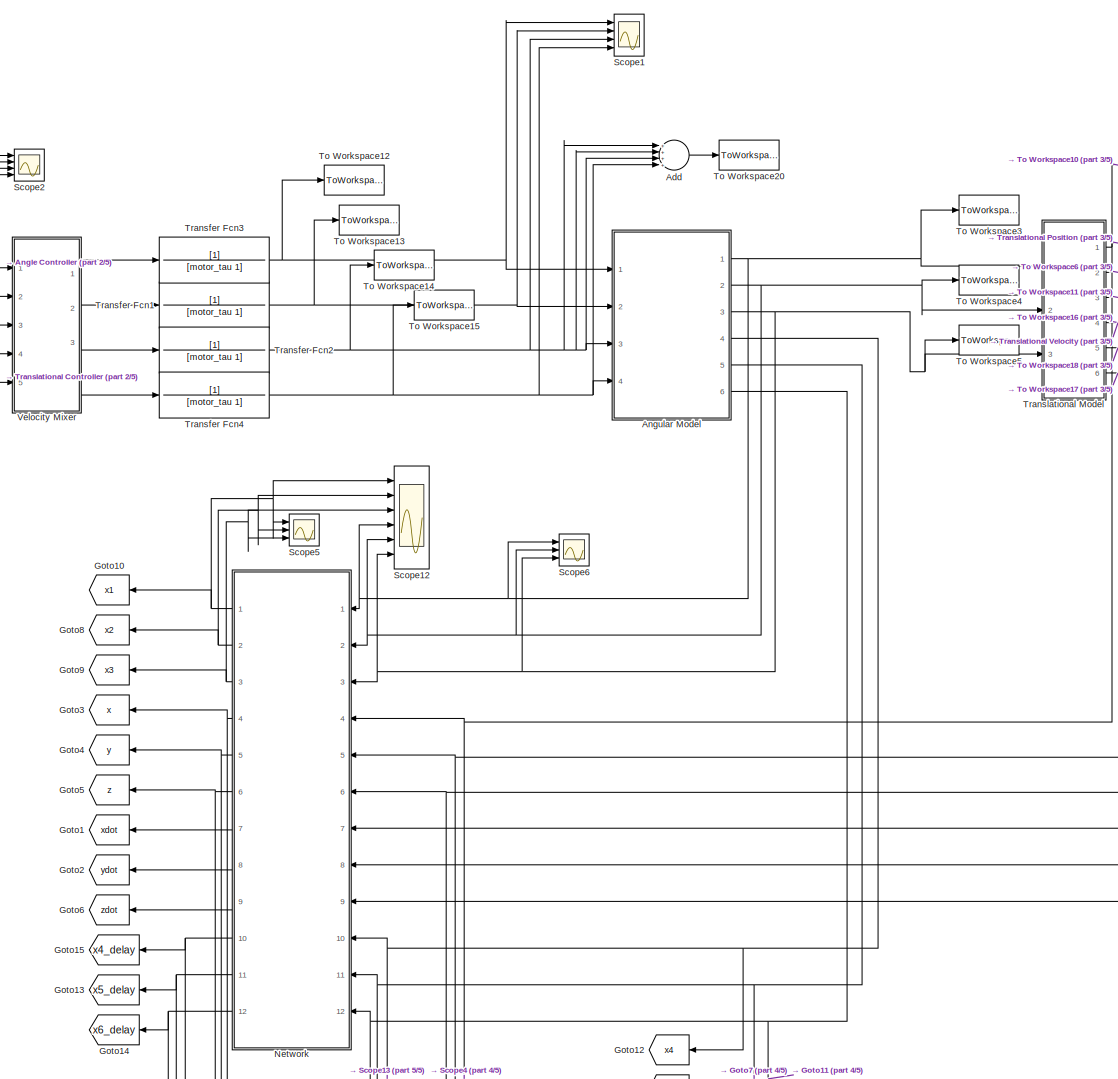
[diagram: root canvas - part 1/5, center side, full height]
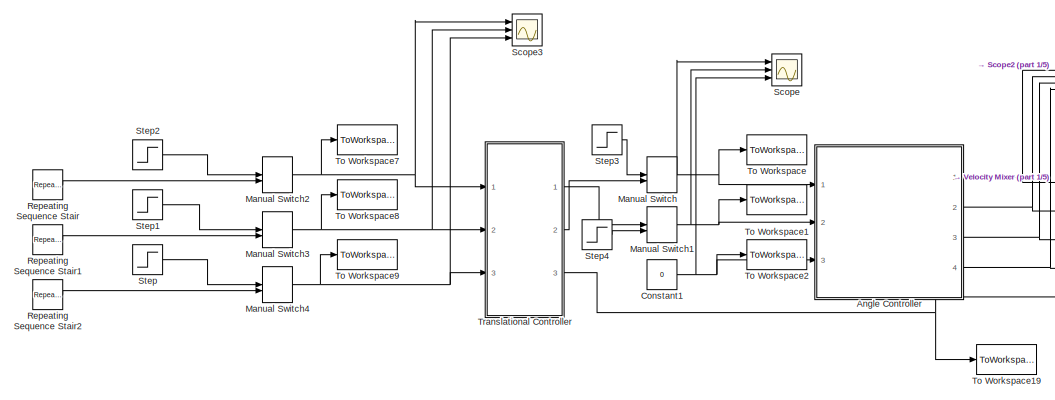
[diagram: root canvas - part 2/5, top left region]
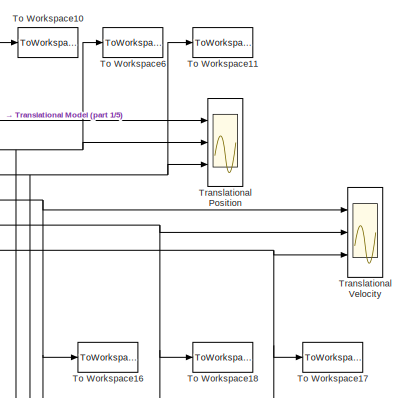
[diagram: root canvas - part 3/5, top right region]
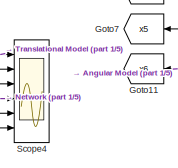
[diagram: root canvas - part 4/5, bottom center region]
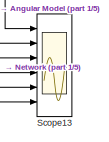
[diagram: root canvas - part 5/5, bottom center region]
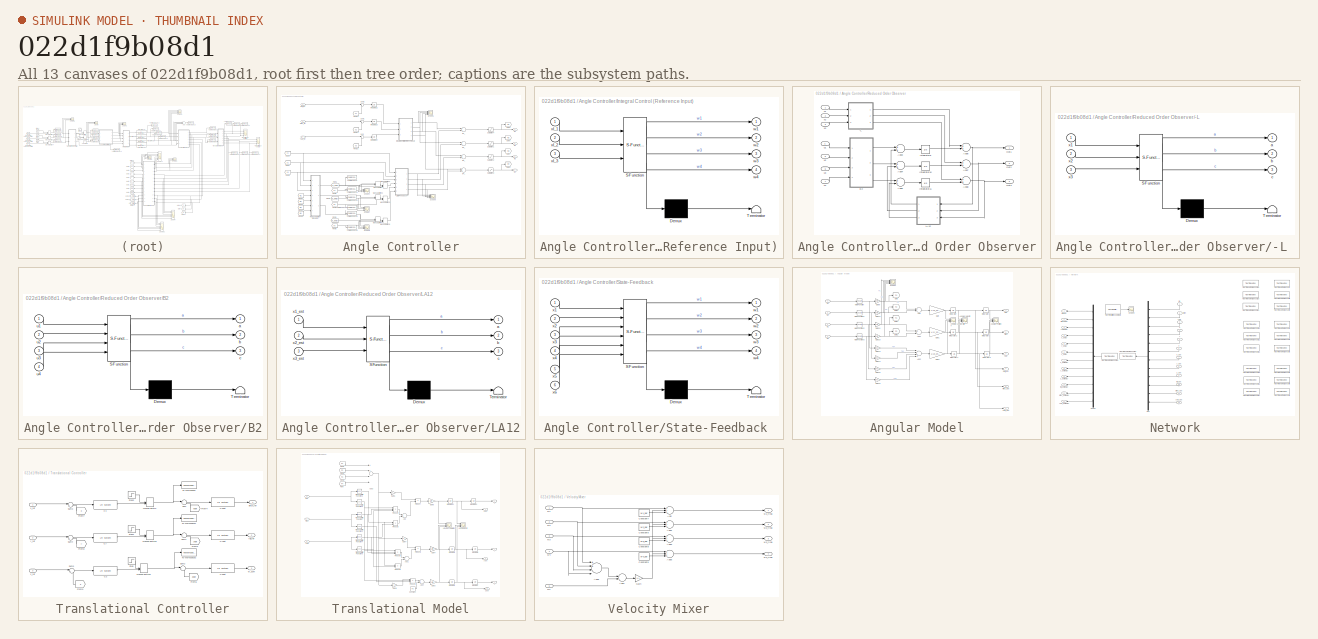
[diagram: thumbnail index - all 13 canvases of the model, root first then tree order]
MODEL slx_022d1f9b08d1
KIND model
CONFIG AbsTol = auto
CONFIG FixedStep = auto
CONFIG MaxStep = auto
CONFIG MinStep = auto
CONFIG RelTol = 1e-3
CONFIG SampleTimeConstraint = Unconstrained
CONFIG Solver = VariableStepAuto
CONFIG SolverMode = Auto
CONFIG SolverName = VariableStepAuto
CONFIG StartTime = 0.0
CONFIG StopTime = t
BLOCK [Sum] Add
  InputSameDT = off
  Inputs = ++++
  OutDataTypeStr = Inherit: Inherit via internal rule
  Ports = [4, 1]
  SaturateOnIntegerOverflow = off
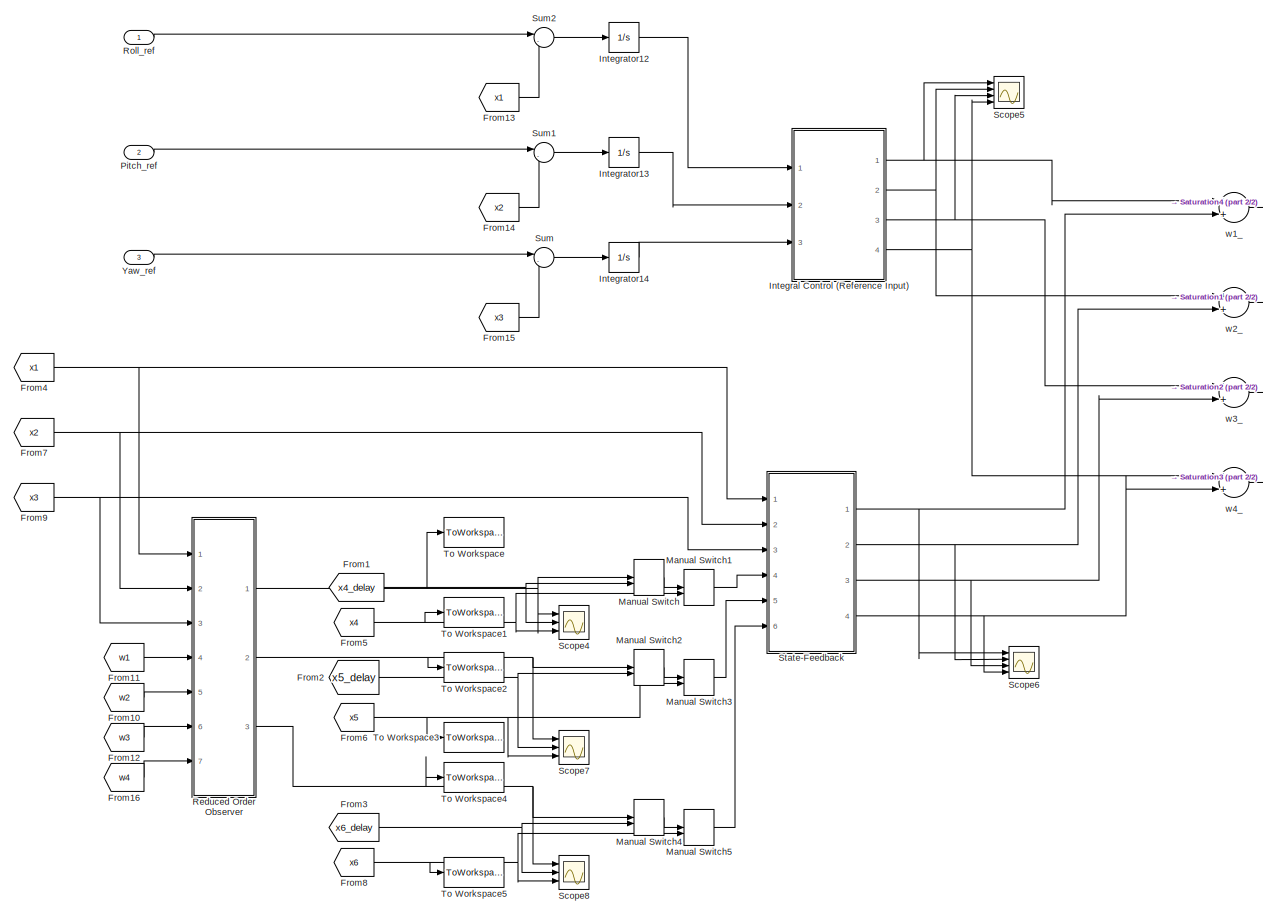
[diagram: Angle Controller - part 1/2, most of the canvas]
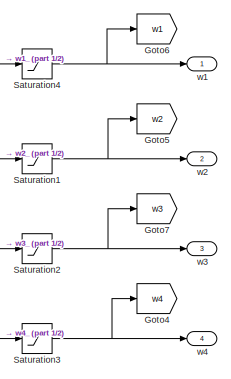
[diagram: Angle Controller - part 2/2, middle right region]
BLOCK [SubSystem] Angle Controller
  Ports = [3, 4]
  RequestExecContextInheritance = off
  Variant = off
BLOCK [From] Angle Controller/From1
  GotoTag = x4_delay
  TagVisibility = global
BLOCK [From] Angle Controller/From10
  GotoTag = w2
BLOCK [From] Angle Controller/From11
  GotoTag = w1
BLOCK [From] Angle Controller/From12
  GotoTag = w3
BLOCK [From] Angle Controller/From13
  GotoTag = x1
  TagVisibility = global
BLOCK [From] Angle Controller/From14
  GotoTag = x2
  TagVisibility = global
BLOCK [From] Angle Controller/From15
  GotoTag = x3
  TagVisibility = global
BLOCK [From] Angle Controller/From16
  GotoTag = w4
BLOCK [From] Angle Controller/From2
  GotoTag = x5_delay
  TagVisibility = global
BLOCK [From] Angle Controller/From3
  GotoTag = x6_delay
  TagVisibility = global
BLOCK [From] Angle Controller/From4
  GotoTag = x1
  TagVisibility = global
BLOCK [From] Angle Controller/From5
  GotoTag = x4
  TagVisibility = global
BLOCK [From] Angle Controller/From6
  GotoTag = x5
  TagVisibility = global
BLOCK [From] Angle Controller/From7
  GotoTag = x2
  TagVisibility = global
BLOCK [From] Angle Controller/From8
  GotoTag = x6
  TagVisibility = global
BLOCK [From] Angle Controller/From9
  GotoTag = x3
  TagVisibility = global
BLOCK [Goto] Angle Controller/Goto4
  GotoTag = w4
BLOCK [Goto] Angle Controller/Goto5
  GotoTag = w2
BLOCK [Goto] Angle Controller/Goto6
  GotoTag = w1
BLOCK [Goto] Angle Controller/Goto7
  GotoTag = w3
BLOCK [SubSystem] Angle Controller/Integral Control (Reference Input)
  ErrorFcn = Stateflow.Translate.translate
  PermitHierarchicalResolution = ExplicitOnly
  Ports = [3, 4]
  RequestExecContextInheritance = off
  SFBlockType = MATLAB Function
  TreatAsAtomicUnit = on
  Variant = off
BLOCK [Demux] Angle Controller/Integral Control (Reference Input)/ Demux 
  Outputs = 1
  Ports = [1, 1]
BLOCK [S-Function] Angle Controller/Integral Control (Reference Input)/ SFunction 
  EnableBusSupport = on
  FunctionName = sf_sfun
  Parameters = FI
  PortCounts = [3 5]
  Ports = [3, 5]
  SFunctionDeploymentMode = off
  Tag = Stateflow S-Function TotalControllerSimOld 2
BLOCK [Terminator] Angle Controller/Integral Control (Reference Input)/ Terminator 
BLOCK [Outport] Angle Controller/Integral Control (Reference Input)/w1
  IconDisplay = Port number
BLOCK [Outport] Angle Controller/Integral Control (Reference Input)/w2
  IconDisplay = Port number
  Port = 2
BLOCK [Outport] Angle Controller/Integral Control (Reference Input)/w3
  IconDisplay = Port number
  Port = 3
BLOCK [Outport] Angle Controller/Integral Control (Reference Input)/w4
  IconDisplay = Port number
  Port = 4
BLOCK [Inport] Angle Controller/Integral Control (Reference Input)/xI_1
  IconDisplay = Port number
BLOCK [Inport] Angle Controller/Integral Control (Reference Input)/xI_2
  IconDisplay = Port number
  Port = 2
BLOCK [Inport] Angle Controller/Integral Control (Reference Input)/xI_3
  IconDisplay = Port number
  Port = 3
BLOCK [Integrator] Angle Controller/Integrator12
  Ports = [1, 1]
BLOCK [Integrator] Angle Controller/Integrator13
  Ports = [1, 1]
BLOCK [Integrator] Angle Controller/Integrator14
  Ports = [1, 1]
BLOCK [ManualSwitch] Angle Controller/Manual Switch
  CurrentSetting = 0
BLOCK [ManualSwitch] Angle Controller/Manual Switch1
BLOCK [ManualSwitch] Angle Controller/Manual Switch2
  CurrentSetting = 0
BLOCK [ManualSwitch] Angle Controller/Manual Switch3
BLOCK [ManualSwitch] Angle Controller/Manual Switch4
  CurrentSetting = 0
BLOCK [ManualSwitch] Angle Controller/Manual Switch5
BLOCK [Inport] Angle Controller/Pitch_ref
  IconDisplay = Port number
  Port = 2
BLOCK [SubSystem] Angle Controller/Reduced Order Observer
  Ports = [7, 3]
  RequestExecContextInheritance = off
  Variant = off
BLOCK [SubSystem] Angle Controller/Reduced Order Observer/-L 
  ErrorFcn = Stateflow.Translate.translate
  PermitHierarchicalResolution = ExplicitOnly
  Ports = [3, 3]
  RequestExecContextInheritance = off
  SFBlockType = MATLAB Function
  TreatAsAtomicUnit = on
  Variant = off
BLOCK [Demux] Angle Controller/Reduced Order Observer/-L / Demux 
  Outputs = 1
  Ports = [1, 1]
BLOCK [S-Function] Angle Controller/Reduced Order Observer/-L / SFunction 
  EnableBusSupport = on
  FunctionName = sf_sfun
  Parameters = Lobs
  PortCounts = [3 4]
  Ports = [3, 4]
  SFunctionDeploymentMode = off
  Tag = Stateflow S-Function TotalControllerSimOld 3
BLOCK [Terminator] Angle Controller/Reduced Order Observer/-L / Terminator 
BLOCK [Outport] Angle Controller/Reduced Order Observer/-L /a
  IconDisplay = Port number
BLOCK [Outport] Angle Controller/Reduced Order Observer/-L /b
  IconDisplay = Port number
  Port = 2
BLOCK [Outport] Angle Controller/Reduced Order Observer/-L /c
  IconDisplay = Port number
  Port = 3
BLOCK [Inport] Angle Controller/Reduced Order Observer/-L /x1
  IconDisplay = Port number
BLOCK [Inport] Angle Controller/Reduced Order Observer/-L /x2
  IconDisplay = Port number
  Port = 2
BLOCK [Inport] Angle Controller/Reduced Order Observer/-L /x3
  IconDisplay = Port number
  Port = 3
BLOCK [Sum] Angle Controller/Reduced Order Observer/Add3
  InputSameDT = off
  Inputs = 2
  OutDataTypeStr = Inherit: Inherit via internal rule
  Ports = [2, 1]
  SaturateOnIntegerOverflow = off
BLOCK [Sum] Angle Controller/Reduced Order Observer/Add4
  InputSameDT = off
  Inputs = 2
  OutDataTypeStr = Inherit: Inherit via internal rule
  Ports = [2, 1]
  SaturateOnIntegerOverflow = off
BLOCK [Sum] Angle Controller/Reduced Order Observer/Add5
  InputSameDT = off
  Inputs = 2
  OutDataTypeStr = Inherit: Inherit via internal rule
  Ports = [2, 1]
  SaturateOnIntegerOverflow = off
BLOCK [Sum] Angle Controller/Reduced Order Observer/Add6
  InputSameDT = off
  Inputs = 2
  OutDataTypeStr = Inherit: Inherit via internal rule
  Ports = [2, 1]
  SaturateOnIntegerOverflow = off
BLOCK [Sum] Angle Controller/Reduced Order Observer/Add7
  InputSameDT = off
  Inputs = 2
  OutDataTypeStr = Inherit: Inherit via internal rule
  Ports = [2, 1]
  SaturateOnIntegerOverflow = off
BLOCK [Sum] Angle Controller/Reduced Order Observer/Add8
  InputSameDT = off
  Inputs = 2
  OutDataTypeStr = Inherit: Inherit via internal rule
  Ports = [2, 1]
  SaturateOnIntegerOverflow = off
BLOCK [SubSystem] Angle Controller/Reduced Order Observer/B2
  ErrorFcn = Stateflow.Translate.translate
  PermitHierarchicalResolution = ExplicitOnly
  Ports = [4, 3]
  RequestExecContextInheritance = off
  SFBlockType = MATLAB Function
  TreatAsAtomicUnit = on
  Variant = off
BLOCK [Demux] Angle Controller/Reduced Order Observer/B2/ Demux 
  Outputs = 1
  Ports = [1, 1]
BLOCK [S-Function] Angle Controller/Reduced Order Observer/B2/ SFunction 
  EnableBusSupport = on
  FunctionName = sf_sfun
  Parameters = B2
  PortCounts = [4 4]
  Ports = [4, 4]
  SFunctionDeploymentMode = off
  Tag = Stateflow S-Function TotalControllerSimOld 4
BLOCK [Terminator] Angle Controller/Reduced Order Observer/B2/ Terminator 
BLOCK [Outport] Angle Controller/Reduced Order Observer/B2/a
  IconDisplay = Port number
BLOCK [Outport] Angle Controller/Reduced Order Observer/B2/b
  IconDisplay = Port number
  Port = 2
BLOCK [Outport] Angle Controller/Reduced Order Observer/B2/c
  IconDisplay = Port number
  Port = 3
BLOCK [Inport] Angle Controller/Reduced Order Observer/B2/u1
  IconDisplay = Port number
BLOCK [Inport] Angle Controller/Reduced Order Observer/B2/u2
  IconDisplay = Port number
  Port = 2
BLOCK [Inport] Angle Controller/Reduced Order Observer/B2/u3
  IconDisplay = Port number
  Port = 3
BLOCK [Inport] Angle Controller/Reduced Order Observer/B2/u4
  IconDisplay = Port number
  Port = 4
BLOCK [Integrator] Angle Controller/Reduced Order Observer/Integrator10
  Ports = [1, 1]
BLOCK [Integrator] Angle Controller/Reduced Order Observer/Integrator11
  Ports = [1, 1]
BLOCK [Integrator] Angle Controller/Reduced Order Observer/Integrator9
  Ports = [1, 1]
BLOCK [SubSystem] Angle Controller/Reduced Order Observer/LA12
  ErrorFcn = Stateflow.Translate.translate
  PermitHierarchicalResolution = ExplicitOnly
  Ports = [3, 3]
  RequestExecContextInheritance = off
  SFBlockType = MATLAB Function
  TreatAsAtomicUnit = on
  Variant = off
BLOCK [Demux] Angle Controller/Reduced Order Observer/LA12/ Demux 
  Outputs = 1
  Ports = [1, 1]
BLOCK [S-Function] Angle Controller/Reduced Order Observer/LA12/ SFunction 
  EnableBusSupport = on
  FunctionName = sf_sfun
  Parameters = A12,Lobs
  PortCounts = [3 4]
  Ports = [3, 4]
  SFunctionDeploymentMode = off
  Tag = Stateflow S-Function TotalControllerSimOld 5
BLOCK [Terminator] Angle Controller/Reduced Order Observer/LA12/ Terminator 
BLOCK [Outport] Angle Controller/Reduced Order Observer/LA12/a
  IconDisplay = Port number
BLOCK [Outport] Angle Controller/Reduced Order Observer/LA12/b
  IconDisplay = Port number
  Port = 2
BLOCK [Outport] Angle Controller/Reduced Order Observer/LA12/c
  IconDisplay = Port number
  Port = 3
BLOCK [Inport] Angle Controller/Reduced Order Observer/LA12/x1_est
  IconDisplay = Port number
BLOCK [Inport] Angle Controller/Reduced Order Observer/LA12/x2_est
  IconDisplay = Port number
  Port = 2
BLOCK [Inport] Angle Controller/Reduced Order Observer/LA12/x3_est
  IconDisplay = Port number
  Port = 3
BLOCK [Outport] Angle Controller/Reduced Order Observer/Out1
  IconDisplay = Port number
BLOCK [Outport] Angle Controller/Reduced Order Observer/Out2
  IconDisplay = Port number
  Port = 2
BLOCK [Outport] Angle Controller/Reduced Order Observer/Out3
  IconDisplay = Port number
  Port = 3
BLOCK [Inport] Angle Controller/Reduced Order Observer/u1
  IconDisplay = Port number
  Port = 4
BLOCK [Inport] Angle Controller/Reduced Order Observer/u2
  IconDisplay = Port number
  Port = 5
BLOCK [Inport] Angle Controller/Reduced Order Observer/u3
  IconDisplay = Port number
  Port = 6
BLOCK [Inport] Angle Controller/Reduced Order Observer/u4
  IconDisplay = Port number
  Port = 7
BLOCK [Inport] Angle Controller/Reduced Order Observer/x1
  IconDisplay = Port number
BLOCK [Inport] Angle Controller/Reduced Order Observer/x2
  IconDisplay = Port number
  Port = 2
BLOCK [Inport] Angle Controller/Reduced Order Observer/x3
  IconDisplay = Port number
  Port = 3
BLOCK [Inport] Angle Controller/Roll_ref
  IconDisplay = Port number
BLOCK [Saturate] Angle Controller/Saturation1
  InputPortMap = u0
  LowerLimit = w_min
  Ports = [1, 1]
  UpperLimit = w_max
BLOCK [Saturate] Angle Controller/Saturation2
  InputPortMap = u0
  LowerLimit = w_min
  Ports = [1, 1]
  UpperLimit = w_max
BLOCK [Saturate] Angle Controller/Saturation3
  InputPortMap = u0
  LowerLimit = w_min
  Ports = [1, 1]
  UpperLimit = w_max
BLOCK [Saturate] Angle Controller/Saturation4
  InputPortMap = u0
  LowerLimit = w_min
  Ports = [1, 1]
  UpperLimit = w_max
BLOCK [Scope] Angle Controller/Scope4
  NumInputPorts = 3
  Ports = [3]
  ScopeSpecificationString = Simulink.scopes.TimeScopeBlockCfg('CurrentConfiguration', extmgr.ConfigurationSet(extmgr.Configuration('Core','General UI',true),extmgr.Configuration('Core','Source UI',true),extmgr.Configuration('Sources','WiredSimulink',true,'DataLoggingVariableName','ScopeData7'),extmgr.Configuration('Visuals','Time Domain',true,'SerializedDisplays',{struct('MinYLimReal','-2.71778','MaxYLimReal','2.75001','YLab...<+1485ch>
BLOCK [Scope] Angle Controller/Scope5
  NumInputPorts = 4
  Ports = [4]
  ScopeSpecificationString = Simulink.scopes.TimeScopeBlockCfg('CurrentConfiguration', extmgr.ConfigurationSet(extmgr.Configuration('Core','General UI',true),extmgr.Configuration('Core','Source UI',true),extmgr.Configuration('Sources','WiredSimulink',true,'DataLoggingVariableName','ScopeData8'),extmgr.Configuration('Visuals','Time Domain',true,'SerializedDisplays',{struct('MinYLimReal','-1.00000','MaxYLimReal','1.00000','YLab...<+1572ch>
BLOCK [Scope] Angle Controller/Scope6
  NumInputPorts = 4
  Ports = [4]
  ScopeSpecificationString = Simulink.scopes.TimeScopeBlockCfg('CurrentConfiguration', extmgr.ConfigurationSet(extmgr.Configuration('Core','General UI',true),extmgr.Configuration('Core','Source UI',true),extmgr.Configuration('Sources','WiredSimulink',true,'DataLoggingVariableName','ScopeData9','DataLoggingSaveFormat','Array','DataLoggingDecimation','1','DataLoggingDecimateData',true),extmgr.Configuration('Visuals','Time Domai...<+1597ch>
BLOCK [Scope] Angle Controller/Scope7
  NumInputPorts = 3
  Ports = [3]
  ScopeSpecificationString = Simulink.scopes.TimeScopeBlockCfg('CurrentConfiguration', extmgr.ConfigurationSet(extmgr.Configuration('Core','General UI',true),extmgr.Configuration('Core','Source UI',true),extmgr.Configuration('Sources','WiredSimulink',true,'DataLoggingVariableName','ScopeData10','DataLoggingSaveFormat','Array','DataLoggingDecimation','1','DataLoggingDecimateData',true),extmgr.Configuration('Visuals','Time Doma...<+1552ch>
BLOCK [Scope] Angle Controller/Scope8
  NumInputPorts = 3
  Ports = [3]
  ScopeSpecificationString = Simulink.scopes.TimeScopeBlockCfg('CurrentConfiguration', extmgr.ConfigurationSet(extmgr.Configuration('Core','General UI',true),extmgr.Configuration('Core','Source UI',true),extmgr.Configuration('Sources','WiredSimulink',true,'DataLoggingVariableName','ScopeData11','DataLoggingSaveFormat','Array','DataLoggingDecimation','1','DataLoggingDecimateData',true),extmgr.Configuration('Visuals','Time Doma...<+1577ch>
BLOCK [SubSystem] Angle Controller/State-Feedback 
  ErrorFcn = Stateflow.Translate.translate
  PermitHierarchicalResolution = ExplicitOnly
  Ports = [6, 4]
  RequestExecContextInheritance = off
  SFBlockType = MATLAB Function
  TreatAsAtomicUnit = on
  Variant = off
BLOCK [Demux] Angle Controller/State-Feedback / Demux 
  Outputs = 1
  Ports = [1, 1]
BLOCK [S-Function] Angle Controller/State-Feedback / SFunction 
  EnableBusSupport = on
  FunctionName = sf_sfun
  Parameters = F
  PortCounts = [6 5]
  Ports = [6, 5]
  SFunctionDeploymentMode = off
  Tag = Stateflow S-Function TotalControllerSimOld 1
BLOCK [Terminator] Angle Controller/State-Feedback / Terminator 
BLOCK [Outport] Angle Controller/State-Feedback /w1
  IconDisplay = Port number
BLOCK [Outport] Angle Controller/State-Feedback /w2
  IconDisplay = Port number
  Port = 2
BLOCK [Outport] Angle Controller/State-Feedback /w3
  IconDisplay = Port number
  Port = 3
BLOCK [Outport] Angle Controller/State-Feedback /w4
  IconDisplay = Port number
  Port = 4
BLOCK [Inport] Angle Controller/State-Feedback /x1
  IconDisplay = Port number
BLOCK [Inport] Angle Controller/State-Feedback /x2
  IconDisplay = Port number
  Port = 2
BLOCK [Inport] Angle Controller/State-Feedback /x3
  IconDisplay = Port number
  Port = 3
BLOCK [Inport] Angle Controller/State-Feedback /x4
  IconDisplay = Port number
  Port = 4
BLOCK [Inport] Angle Controller/State-Feedback /x5
  IconDisplay = Port number
  Port = 5
BLOCK [Inport] Angle Controller/State-Feedback /x6
  IconDisplay = Port number
  Port = 6
BLOCK [Sum] Angle Controller/Sum
  IconShape = round
  InputSameDT = off
  Inputs = |-+
  OutDataTypeStr = Inherit: Inherit via internal rule
  Ports = [2, 1]
  SaturateOnIntegerOverflow = off
BLOCK [Sum] Angle Controller/Sum1
  IconShape = round
  InputSameDT = off
  Inputs = |-+
  OutDataTypeStr = Inherit: Inherit via internal rule
  Ports = [2, 1]
  SaturateOnIntegerOverflow = off
BLOCK [Sum] Angle Controller/Sum2
  IconShape = round
  InputSameDT = off
  Inputs = |-+
  OutDataTypeStr = Inherit: Inherit via internal rule
  Ports = [2, 1]
  SaturateOnIntegerOverflow = off
BLOCK [ToWorkspace] Angle Controller/To Workspace
  FixptAsFi = on
  MaxDataPoints = inf
  Ports = [1]
  SampleTime = -1
  Save2DSignal = 3-D array (concatenate along third dimension)
  SaveFormat = Timeseries
  VariableName = x4_est
BLOCK [ToWorkspace] Angle Controller/To Workspace1
  FixptAsFi = on
  MaxDataPoints = inf
  Ports = [1]
  SampleTime = -1
  Save2DSignal = 3-D array (concatenate along third dimension)
  SaveFormat = Timeseries
  VariableName = x4
BLOCK [ToWorkspace] Angle Controller/To Workspace2
  FixptAsFi = on
  MaxDataPoints = inf
  Ports = [1]
  SampleTime = -1
  Save2DSignal = 3-D array (concatenate along third dimension)
  SaveFormat = Timeseries
  VariableName = x5_est
BLOCK [ToWorkspace] Angle Controller/To Workspace3
  FixptAsFi = on
  MaxDataPoints = inf
  Ports = [1]
  SampleTime = -1
  Save2DSignal = 3-D array (concatenate along third dimension)
  SaveFormat = Timeseries
  VariableName = x5
BLOCK [ToWorkspace] Angle Controller/To Workspace4
  FixptAsFi = on
  MaxDataPoints = inf
  Ports = [1]
  SampleTime = -1
  Save2DSignal = 3-D array (concatenate along third dimension)
  SaveFormat = Timeseries
  VariableName = x6_est
BLOCK [ToWorkspace] Angle Controller/To Workspace5
  FixptAsFi = on
  MaxDataPoints = inf
  Ports = [1]
  SampleTime = -1
  Save2DSignal = 3-D array (concatenate along third dimension)
  SaveFormat = Timeseries
  VariableName = x6
BLOCK [Inport] Angle Controller/Yaw_ref
  IconDisplay = Port number
  Port = 3
BLOCK [Outport] Angle Controller/w1
  IconDisplay = Port number
BLOCK [Sum] Angle Controller/w1_
  InputSameDT = off
  OutDataTypeStr = Inherit: Inherit via internal rule
  Ports = [2, 1]
  SaturateOnIntegerOverflow = off
BLOCK [Outport] Angle Controller/w2
  IconDisplay = Port number
  Port = 2
BLOCK [Sum] Angle Controller/w2_
  InputSameDT = off
  OutDataTypeStr = Inherit: Inherit via internal rule
  Ports = [2, 1]
  SaturateOnIntegerOverflow = off
BLOCK [Outport] Angle Controller/w3
  IconDisplay = Port number
  Port = 3
BLOCK [Sum] Angle Controller/w3_
  InputSameDT = off
  OutDataTypeStr = Inherit: Inherit via internal rule
  Ports = [2, 1]
  SaturateOnIntegerOverflow = off
BLOCK [Outport] Angle Controller/w4
  IconDisplay = Port number
  Port = 4
BLOCK [Sum] Angle Controller/w4_
  InputSameDT = off
  OutDataTypeStr = Inherit: Inherit via internal rule
  Ports = [2, 1]
  SaturateOnIntegerOverflow = off
BLOCK [SubSystem] Angular Model
  Ports = [4, 6]
  RequestExecContextInheritance = off
  Variant = off
BLOCK [Sum] Angular Model/Add
  InputSameDT = off
  Inputs = +-
  OutDataTypeStr = Inherit: Inherit via internal rule
  Ports = [2, 1]
  SaturateOnIntegerOverflow = off
BLOCK [Sum] Angular Model/Add1
  InputSameDT = off
  Inputs = +-
  OutDataTypeStr = Inherit: Inherit via internal rule
  Ports = [2, 1]
  SaturateOnIntegerOverflow = off
BLOCK [Sum] Angular Model/Add2
  InputSameDT = off
  Inputs = --++
  OutDataTypeStr = Inherit: Inherit via internal rule
  Ports = [4, 1]
  SaturateOnIntegerOverflow = off
BLOCK [Scope] Angular Model/Angular Acceleration
  NumInputPorts = 3
  Ports = [3]
  ScopeSpecificationString = Simulink.scopes.TimeScopeBlockCfg('CurrentConfiguration', extmgr.ConfigurationSet(extmgr.Configuration('Core','General UI',true),extmgr.Configuration('Core','Source UI',true),extmgr.Configuration('Sources','WiredSimulink',true,'DataLoggingVariableName','ScopeData3','DataLoggingLimitDataPoints',true,'DataLoggingSaveFormat','Array','DataLoggingDecimation','1','DataLoggingDecimateData',true),extmgr.C...<+1496ch>
BLOCK [Scope] Angular Model/Angular Position
  NumInputPorts = 3
  Ports = [3]
  ScopeSpecificationString = Simulink.scopes.TimeScopeBlockCfg('CurrentConfiguration', extmgr.ConfigurationSet(extmgr.Configuration('Core','General UI',true),extmgr.Configuration('Core','Source UI',true),extmgr.Configuration('Sources','WiredSimulink',true,'DataLoggingVariableName','ScopeData1'),extmgr.Configuration('Visuals','Time Domain',true,'SerializedDisplays',{struct('MinYLimReal','-29.88128','MaxYLimReal','29.86241','YL...<+1504ch>
BLOCK [Scope] Angular Model/Angular Velocity
  NumInputPorts = 3
  Ports = [3]
  ScopeSpecificationString = Simulink.scopes.TimeScopeBlockCfg('CurrentConfiguration', extmgr.ConfigurationSet(extmgr.Configuration('Core','General UI',true),extmgr.Configuration('Core','Source UI',true),extmgr.Configuration('Sources','WiredSimulink',true,'DataLoggingVariableName','ScopeData2','DataLoggingSaveFormat','Array','DataLoggingDecimation','1','DataLoggingDecimateData',true),extmgr.Configuration('Visuals','Time Domai...<+1551ch>
BLOCK [Gain] Angular Model/Gain
  Gain = L/Jx_changed
  OutDataTypeStr = Inherit: Inherit via internal rule
  ParamDataTypeStr = Inherit: Inherit via internal rule
  SaturateOnIntegerOverflow = off
BLOCK [Gain] Angular Model/Gain1
  Gain = L/Jy_changed
  OutDataTypeStr = Inherit: Inherit via internal rule
  ParamDataTypeStr = Inherit: Inherit via internal rule
  SaturateOnIntegerOverflow = off
BLOCK [Gain] Angular Model/Gain10
  Gain = kth
  OutDataTypeStr = Inherit: Inherit via internal rule
  ParamDataTypeStr = Inherit: Inherit via internal rule
  SaturateOnIntegerOverflow = off
BLOCK [Gain] Angular Model/Gain11
  Gain = kth
  OutDataTypeStr = Inherit: Inherit via internal rule
  ParamDataTypeStr = Inherit: Inherit via internal rule
  SaturateOnIntegerOverflow = off
BLOCK [Gain] Angular Model/Gain12
  Gain = kth
  OutDataTypeStr = Inherit: Inherit via internal rule
  ParamDataTypeStr = Inherit: Inherit via internal rule
  SaturateOnIntegerOverflow = off
BLOCK [Gain] Angular Model/Gain13
  Gain = kd
  OutDataTypeStr = Inherit: Inherit via internal rule
  ParamDataTypeStr = Inherit: Inherit via internal rule
  SaturateOnIntegerOverflow = off
BLOCK [Gain] Angular Model/Gain14
  Gain = kd
  OutDataTypeStr = Inherit: Inherit via internal rule
  ParamDataTypeStr = Inherit: Inherit via internal rule
  SaturateOnIntegerOverflow = off
BLOCK [Gain] Angular Model/Gain15
  Gain = kd
  OutDataTypeStr = Inherit: Inherit via internal rule
  ParamDataTypeStr = Inherit: Inherit via internal rule
  SaturateOnIntegerOverflow = off
BLOCK [Gain] Angular Model/Gain16
  Gain = kd
  OutDataTypeStr = Inherit: Inherit via internal rule
  ParamDataTypeStr = Inherit: Inherit via internal rule
  SaturateOnIntegerOverflow = off
BLOCK [Gain] Angular Model/Gain2
  Gain = 1/Jz_changed
  OutDataTypeStr = Inherit: Inherit via internal rule
  ParamDataTypeStr = Inherit: Inherit via internal rule
  SaturateOnIntegerOverflow = off
BLOCK [Gain] Angular Model/Gain9
  Gain = kth
  OutDataTypeStr = Inherit: Inherit via internal rule
  ParamDataTypeStr = Inherit: Inherit via internal rule
  SaturateOnIntegerOverflow = off
BLOCK [Goto] Angular Model/Goto
  GotoTag = F4
  TagVisibility = global
BLOCK [Goto] Angular Model/Goto1
  GotoTag = F1
  TagVisibility = global
BLOCK [Goto] Angular Model/Goto2
  GotoTag = F3
  TagVisibility = global
BLOCK [Goto] Angular Model/Goto3
  GotoTag = F2
  TagVisibility = global
BLOCK [Integrator] Angular Model/Integrator
  Ports = [1, 1]
BLOCK [Integrator] Angular Model/Integrator1
  InitialCondition = roll_init
  Ports = [1, 1]
BLOCK [Integrator] Angular Model/Integrator2
  Ports = [1, 1]
BLOCK [Integrator] Angular Model/Integrator3
  InitialCondition = pitch_init
  Ports = [1, 1]
BLOCK [Integrator] Angular Model/Integrator4
  Ports = [1, 1]
BLOCK [Integrator] Angular Model/Integrator5
  InitialCondition = yaw_init
  Ports = [1, 1]
BLOCK [Math] Angular Model/Math Function
  Operator = square
  Ports = [1, 1]
BLOCK [Math] Angular Model/Math Function1
  Operator = square
  Ports = [1, 1]
BLOCK [Math] Angular Model/Math Function2
  Operator = square
  Ports = [1, 1]
BLOCK [Math] Angular Model/Math Function3
  Operator = square
  Ports = [1, 1]
BLOCK [Outport] Angular Model/Pitch
  IconDisplay = Port number
  Port = 2
BLOCK [Outport] Angular Model/Pitch_dot
  IconDisplay = Port number
  Port = 5
BLOCK [Outport] Angular Model/Roll
  IconDisplay = Port number
BLOCK [Outport] Angular Model/Rolll_dot
  IconDisplay = Port number
  Port = 4
BLOCK [Scope] Angular Model/Scope1
  NumInputPorts = 4
  Ports = [4]
  ScopeSpecificationString = Simulink.scopes.TimeScopeBlockCfg('CurrentConfiguration', extmgr.ConfigurationSet(extmgr.Configuration('Core','General UI',true),extmgr.Configuration('Core','Source UI',true),extmgr.Configuration('Sources','WiredSimulink',true),extmgr.Configuration('Visuals','Time Domain',true,'SerializedDisplays',{struct('MinYLimReal','0.92431','MaxYLimReal','1.32555','YLabelReal','','MinYLimMag','0.92431','MaxYL...<+1433ch>
BLOCK [Outport] Angular Model/Yaw
  IconDisplay = Port number
  Port = 3
BLOCK [Outport] Angular Model/Yaw_dot
  IconDisplay = Port number
  Port = 6
BLOCK [Inport] Angular Model/w1
  IconDisplay = Port number
BLOCK [Inport] Angular Model/w2
  IconDisplay = Port number
  Port = 2
BLOCK [Inport] Angular Model/w3
  IconDisplay = Port number
  Port = 3
BLOCK [Inport] Angular Model/w4
  IconDisplay = Port number
  Port = 4
BLOCK [Constant] Constant1
  Value = 0
BLOCK [Goto] Goto1
  GotoTag = xdot
  TagVisibility = global
BLOCK [Goto] Goto10
  GotoTag = x1
  TagVisibility = global
BLOCK [Goto] Goto11
  GotoTag = x6
  TagVisibility = global
BLOCK [Goto] Goto12
  GotoTag = x4
  TagVisibility = global
BLOCK [Goto] Goto13
  GotoTag = x5_delay
  TagVisibility = global
BLOCK [Goto] Goto14
  GotoTag = x6_delay
  TagVisibility = global
BLOCK [Goto] Goto15
  GotoTag = x4_delay
  TagVisibility = global
BLOCK [Goto] Goto2
  GotoTag = ydot
  TagVisibility = global
BLOCK [Goto] Goto3
  GotoTag = x
  TagVisibility = global
BLOCK [Goto] Goto4
  GotoTag = y
  TagVisibility = global
BLOCK [Goto] Goto5
  GotoTag = z
  TagVisibility = global
BLOCK [Goto] Goto6
  GotoTag = zdot
  TagVisibility = global
BLOCK [Goto] Goto7
  GotoTag = x5
  TagVisibility = global
BLOCK [Goto] Goto8
  GotoTag = x2
  TagVisibility = global
BLOCK [Goto] Goto9
  GotoTag = x3
  TagVisibility = global
BLOCK [ManualSwitch] Manual Switch
  CurrentSetting = 0
BLOCK [ManualSwitch] Manual Switch1
BLOCK [ManualSwitch] Manual Switch2
BLOCK [ManualSwitch] Manual Switch3
BLOCK [ManualSwitch] Manual Switch4
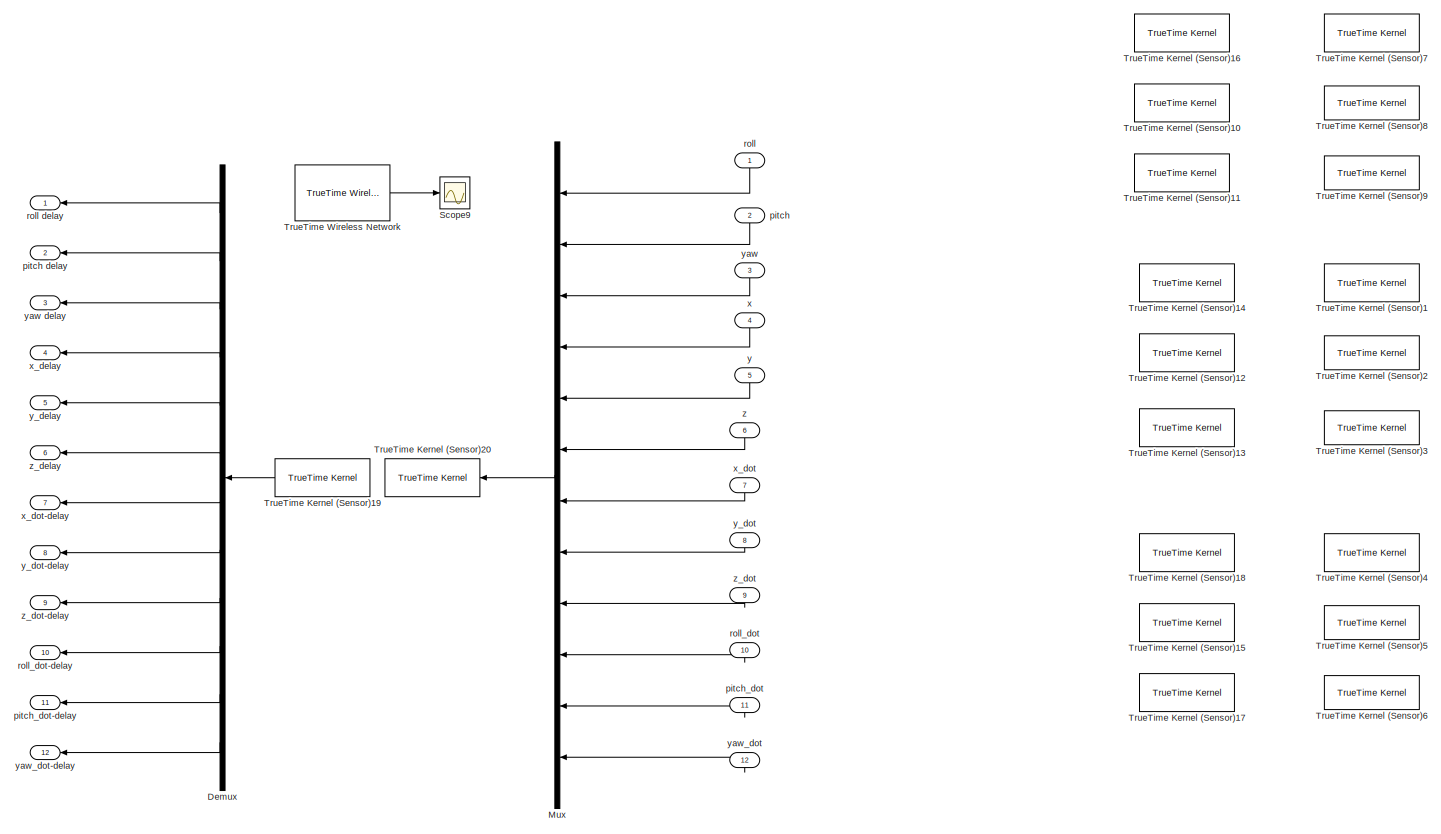
[diagram: Network - part 1/1, most of the canvas]
BLOCK [SubSystem] Network
  Ports = [12, 12]
  RequestExecContextInheritance = off
  Variant = off
BLOCK [Demux] Network/Demux
  DisplayOption = bar
  Outputs = 12
  Ports = [1, 12]
BLOCK [Mux] Network/Mux
  DisplayOption = bar
  Inputs = 12
  Ports = [12, 1]
BLOCK [Scope] Network/Scope9
  Ports = [1]
  ScopeSpecificationString = Simulink.scopes.TimeScopeBlockCfg('CurrentConfiguration', extmgr.ConfigurationSet(extmgr.Configuration('Core','General UI',true),extmgr.Configuration('Core','Source UI',true),extmgr.Configuration('Sources','WiredSimulink',true,'DataLoggingVariableName','ScopeData6'),extmgr.Configuration('Visuals','Time Domain',true,'SerializedDisplays',{struct('MinYLimReal','1.24145','MaxYLimReal','1.50629','YLabe...<+1487ch>
BLOCK [Reference] Network/TrueTime Kernel (Sensor)1  REF=truetime/TrueTime Kernel  (lib defined in slx_0362a698a4ec)
  Commented = on
  Ports = [1]
  Priority = 1
  SourceBlock = truetime/TrueTime Kernel
BLOCK [Reference] Network/TrueTime Kernel (Sensor)10  REF=truetime/TrueTime Kernel  (lib defined in slx_0362a698a4ec)
  Commented = on
  Ports = [0, 1]
  Priority = 1
  SourceBlock = truetime/TrueTime Kernel
BLOCK [Reference] Network/TrueTime Kernel (Sensor)11  REF=truetime/TrueTime Kernel  (lib defined in slx_0362a698a4ec)
  Commented = on
  Ports = [0, 1]
  Priority = 1
  SourceBlock = truetime/TrueTime Kernel
BLOCK [Reference] Network/TrueTime Kernel (Sensor)12  REF=truetime/TrueTime Kernel  (lib defined in slx_0362a698a4ec)
  Commented = on
  Ports = [0, 1]
  Priority = 1
  SourceBlock = truetime/TrueTime Kernel
BLOCK [Reference] Network/TrueTime Kernel (Sensor)13  REF=truetime/TrueTime Kernel  (lib defined in slx_0362a698a4ec)
  Commented = on
  Ports = [0, 1]
  Priority = 1
  SourceBlock = truetime/TrueTime Kernel
BLOCK [Reference] Network/TrueTime Kernel (Sensor)14  REF=truetime/TrueTime Kernel  (lib defined in slx_0362a698a4ec)
  Commented = on
  Ports = [0, 1]
  Priority = 1
  SourceBlock = truetime/TrueTime Kernel
BLOCK [Reference] Network/TrueTime Kernel (Sensor)15  REF=truetime/TrueTime Kernel  (lib defined in slx_0362a698a4ec)
  Commented = on
  Ports = [0, 1]
  Priority = 1
  SourceBlock = truetime/TrueTime Kernel
BLOCK [Reference] Network/TrueTime Kernel (Sensor)16  REF=truetime/TrueTime Kernel  (lib defined in slx_0362a698a4ec)
  Commented = on
  Ports = [0, 1]
  Priority = 1
  SourceBlock = truetime/TrueTime Kernel
BLOCK [Reference] Network/TrueTime Kernel (Sensor)17  REF=truetime/TrueTime Kernel  (lib defined in slx_0362a698a4ec)
  Commented = on
  Ports = [0, 1]
  Priority = 1
  SourceBlock = truetime/TrueTime Kernel
BLOCK [Reference] Network/TrueTime Kernel (Sensor)18  REF=truetime/TrueTime Kernel  (lib defined in slx_0362a698a4ec)
  Commented = on
  Ports = [0, 1]
  Priority = 1
  SourceBlock = truetime/TrueTime Kernel
BLOCK [Reference] Network/TrueTime Kernel (Sensor)19  REF=truetime/TrueTime Kernel  (lib defined in slx_0362a698a4ec)
  Ports = [0, 1]
  Priority = 1
  SourceBlock = truetime/TrueTime Kernel
BLOCK [Reference] Network/TrueTime Kernel (Sensor)2  REF=truetime/TrueTime Kernel  (lib defined in slx_0362a698a4ec)
  Commented = on
  Ports = [1]
  Priority = 1
  SourceBlock = truetime/TrueTime Kernel
BLOCK [Reference] Network/TrueTime Kernel (Sensor)20  REF=truetime/TrueTime Kernel  (lib defined in slx_0362a698a4ec)
  Ports = [1]
  Priority = 1
  SourceBlock = truetime/TrueTime Kernel
BLOCK [Reference] Network/TrueTime Kernel (Sensor)3  REF=truetime/TrueTime Kernel  (lib defined in slx_0362a698a4ec)
  Commented = on
  Ports = [1]
  Priority = 1
  SourceBlock = truetime/TrueTime Kernel
BLOCK [Reference] Network/TrueTime Kernel (Sensor)4  REF=truetime/TrueTime Kernel  (lib defined in slx_0362a698a4ec)
  Commented = on
  Ports = [1]
  Priority = 1
  SourceBlock = truetime/TrueTime Kernel
BLOCK [Reference] Network/TrueTime Kernel (Sensor)5  REF=truetime/TrueTime Kernel  (lib defined in slx_0362a698a4ec)
  Commented = on
  Ports = [1]
  Priority = 1
  SourceBlock = truetime/TrueTime Kernel
BLOCK [Reference] Network/TrueTime Kernel (Sensor)6  REF=truetime/TrueTime Kernel  (lib defined in slx_0362a698a4ec)
  Commented = on
  Ports = [1]
  Priority = 1
  SourceBlock = truetime/TrueTime Kernel
BLOCK [Reference] Network/TrueTime Kernel (Sensor)7  REF=truetime/TrueTime Kernel  (lib defined in slx_0362a698a4ec)
  Commented = on
  Ports = [1]
  Priority = 1
  SourceBlock = truetime/TrueTime Kernel
BLOCK [Reference] Network/TrueTime Kernel (Sensor)8  REF=truetime/TrueTime Kernel  (lib defined in slx_0362a698a4ec)
  Commented = on
  Ports = [1]
  Priority = 1
  SourceBlock = truetime/TrueTime Kernel
BLOCK [Reference] Network/TrueTime Kernel (Sensor)9  REF=truetime/TrueTime Kernel  (lib defined in slx_0362a698a4ec)
  Commented = on
  Ports = [1]
  Priority = 1
  SourceBlock = truetime/TrueTime Kernel
BLOCK [Reference] Network/TrueTime Wireless Network  REF=truetime/TrueTime Wireless   (lib defined in slx_0362a698a4ec)
Network
  Ports = [2, 1]
  SourceBlock = truetime/TrueTime Wireless \nNetwork
  SourceType = Wireless Network
BLOCK [Inport] Network/pitch
  IconDisplay = Port number
  Port = 2
BLOCK [Outport] Network/pitch delay
  IconDisplay = Port number
  Port = 2
BLOCK [Inport] Network/pitch_dot
  IconDisplay = Port number
  Port = 11
BLOCK [Outport] Network/pitch_dot-delay
  IconDisplay = Port number
  Port = 11
BLOCK [Inport] Network/roll
  IconDisplay = Port number
BLOCK [Outport] Network/roll delay
  IconDisplay = Port number
BLOCK [Inport] Network/roll_dot
  IconDisplay = Port number
  Port = 10
BLOCK [Outport] Network/roll_dot-delay
  IconDisplay = Port number
  Port = 10
BLOCK [Inport] Network/x
  IconDisplay = Port number
  Port = 4
BLOCK [Outport] Network/x_delay
  IconDisplay = Port number
  Port = 4
BLOCK [Inport] Network/x_dot
  IconDisplay = Port number
  Port = 7
BLOCK [Outport] Network/x_dot-delay
  IconDisplay = Port number
  Port = 7
BLOCK [Inport] Network/y
  IconDisplay = Port number
  Port = 5
BLOCK [Outport] Network/y_delay
  IconDisplay = Port number
  Port = 5
BLOCK [Inport] Network/y_dot
  IconDisplay = Port number
  Port = 8
BLOCK [Outport] Network/y_dot-delay
  IconDisplay = Port number
  Port = 8
BLOCK [Inport] Network/yaw
  IconDisplay = Port number
  Port = 3
BLOCK [Outport] Network/yaw delay
  IconDisplay = Port number
  Port = 3
BLOCK [Inport] Network/yaw_dot
  IconDisplay = Port number
  Port = 12
BLOCK [Outport] Network/yaw_dot-delay
  IconDisplay = Port number
  Port = 12
BLOCK [Inport] Network/z
  IconDisplay = Port number
  Port = 6
BLOCK [Outport] Network/z_delay
  IconDisplay = Port number
  Port = 6
BLOCK [Inport] Network/z_dot
  IconDisplay = Port number
  Port = 9
BLOCK [Outport] Network/z_dot-delay
  IconDisplay = Port number
  Port = 9
BLOCK [Reference] Repeating Sequence Stair  REF=simulink/Sources/Repeating
Sequence
Stair
  Ports = [0, 1]
  SourceBlock = simulink/Sources/Repeating\nSequence\nStair
  SourceType = Repeating Sequence Stair
BLOCK [Reference] Repeating Sequence Stair1  REF=simulink/Sources/Repeating
Sequence
Stair
  Ports = [0, 1]
  SourceBlock = simulink/Sources/Repeating\nSequence\nStair
  SourceType = Repeating Sequence Stair
BLOCK [Reference] Repeating Sequence Stair2  REF=simulink/Sources/Repeating
Sequence
Stair
  Ports = [0, 1]
  SourceBlock = simulink/Sources/Repeating\nSequence\nStair
  SourceType = Repeating Sequence Stair
BLOCK [Scope] Scope
  NumInputPorts = 3
  Ports = [3]
  ScopeSpecificationString = Simulink.scopes.TimeScopeBlockCfg('CurrentConfiguration', extmgr.ConfigurationSet(extmgr.Configuration('Core','General UI',true),extmgr.Configuration('Core','Source UI',true),extmgr.Configuration('Sources','WiredSimulink',true,'DataLoggingVariableName','ScopeData1'),extmgr.Configuration('Visuals','Time Domain',true,'SerializedDisplays',{struct('MinYLimReal','-0.08712','MaxYLimReal','0.01701','YLab...<+1474ch>
BLOCK [Scope] Scope1
  NumInputPorts = 4
  Ports = [4]
  ScopeSpecificationString = Simulink.scopes.TimeScopeBlockCfg('CurrentConfiguration', extmgr.ConfigurationSet(extmgr.Configuration('Core','General UI',true),extmgr.Configuration('Core','Source UI',true),extmgr.Configuration('Sources','WiredSimulink',true,'DataLoggingVariableName','ScopeData1'),extmgr.Configuration('Visuals','Time Domain',true,'SerializedDisplays',{struct('MinYLimReal','426.89282','MaxYLimReal','430.47211','Y...<+1530ch>
BLOCK [Scope] Scope12
  NumInputPorts = 6
  Ports = [6]
  ScopeSpecificationString = Simulink.scopes.TimeScopeBlockCfg('CurrentConfiguration', extmgr.ConfigurationSet(extmgr.Configuration('Core','General UI',true),extmgr.Configuration('Core','Source UI',true),extmgr.Configuration('Sources','WiredSimulink',true,'DataLoggingVariableName','ScopeData2','DataLoggingSaveFormat','Array','DataLoggingDecimation','1','DataLoggingDecimateData',true),extmgr.Configuration('Visuals','Time Domai...<+1627ch>
BLOCK [Scope] Scope13
  NumInputPorts = 6
  Ports = [6]
  ScopeSpecificationString = Simulink.scopes.TimeScopeBlockCfg('CurrentConfiguration', extmgr.ConfigurationSet(extmgr.Configuration('Core','General UI',true),extmgr.Configuration('Core','Source UI',true),extmgr.Configuration('Sources','WiredSimulink',true,'DataLoggingVariableName','ScopeData1','DataLoggingSaveFormat','Array','DataLoggingDecimation','1','DataLoggingDecimateData',true),extmgr.Configuration('Visuals','Time Domai...<+1617ch>
BLOCK [Scope] Scope2
  NumInputPorts = 4
  Ports = [4]
  ScopeSpecificationString = Simulink.scopes.TimeScopeBlockCfg('CurrentConfiguration', extmgr.ConfigurationSet(extmgr.Configuration('Core','General UI',true),extmgr.Configuration('Core','Source UI',true),extmgr.Configuration('Sources','WiredSimulink',true,'DataLoggingVariableName','ScopeData2'),extmgr.Configuration('Visuals','Time Domain',true,'SerializedDisplays',{struct('MinYLimReal','-1.78967','MaxYLimReal','1.78963','YLab...<+1511ch>
BLOCK [Scope] Scope3
  NumInputPorts = 3
  Ports = [3]
  ScopeSpecificationString = Simulink.scopes.TimeScopeBlockCfg('CurrentConfiguration', extmgr.ConfigurationSet(extmgr.Configuration('Core','General UI',true),extmgr.Configuration('Core','Source UI',true),extmgr.Configuration('Sources','WiredSimulink',true,'DataLoggingVariableName','ScopeData1','DataLoggingSaveFormat','Array','DataLoggingDecimation','1','DataLoggingDecimateData',true),extmgr.Configuration('Visuals','Time Domai...<+1521ch>
BLOCK [Scope] Scope4
  NumInputPorts = 6
  Ports = [6]
  ScopeSpecificationString = Simulink.scopes.TimeScopeBlockCfg('CurrentConfiguration', extmgr.ConfigurationSet(extmgr.Configuration('Core','General UI',true),extmgr.Configuration('Core','Source UI',true),extmgr.Configuration('Sources','WiredSimulink',true,'DataLoggingVariableName','ScopeData1','DataLoggingSaveFormat','Array','DataLoggingDecimation','1','DataLoggingDecimateData',true),extmgr.Configuration('Visuals','Time Domai...<+1636ch>
BLOCK [Scope] Scope5
  NumInputPorts = 3
  Ports = [3]
  ScopeSpecificationString = Simulink.scopes.TimeScopeBlockCfg('CurrentConfiguration', extmgr.ConfigurationSet(extmgr.Configuration('Core','General UI',true),extmgr.Configuration('Core','Source UI',true),extmgr.Configuration('Sources','WiredSimulink',true,'DataLoggingVariableName','ScopeData1','DataLoggingLimitDataPoints',true,'DataLoggingSaveFormat','Array','DataLoggingDecimation','1','DataLoggingDecimateData',true),extmgr.C...<+1582ch>
BLOCK [Scope] Scope6
  NumInputPorts = 3
  Ports = [3]
  ScopeSpecificationString = Simulink.scopes.TimeScopeBlockCfg('CurrentConfiguration', extmgr.ConfigurationSet(extmgr.Configuration('Core','General UI',true),extmgr.Configuration('Core','Source UI',true),extmgr.Configuration('Sources','WiredSimulink',true,'DataLoggingVariableName','ScopeData2'),extmgr.Configuration('Visuals','Time Domain',true,'SerializedDisplays',{struct('MinYLimReal','-0.12579','MaxYLimReal','1.13037','YLab...<+1481ch>
BLOCK [Step] Step
  After = z_ref_step
  SampleTime = 0
  Time = z_ref_time
BLOCK [Step] Step1
  After = y_ref_step
  SampleTime = 0
  Time = y_ref_time
BLOCK [Step] Step2
  After = x_ref_step
  SampleTime = 0
  Time = x_ref_time
BLOCK [Step] Step3
  After = roll_step
  SampleTime = 0
  Time = roll_ref_time
BLOCK [Step] Step4
  After = pitch_step
  SampleTime = 0
  Time = pitch_ref_time
BLOCK [ToWorkspace] To Workspace
  FixptAsFi = on
  MaxDataPoints = inf
  Ports = [1]
  SampleTime = -1
  Save2DSignal = 3-D array (concatenate along third dimension)
  SaveFormat = Timeseries
  VariableName = roll_ref
BLOCK [ToWorkspace] To Workspace1
  FixptAsFi = on
  MaxDataPoints = inf
  Ports = [1]
  SampleTime = -1
  Save2DSignal = 3-D array (concatenate along third dimension)
  SaveFormat = Timeseries
  VariableName = pitch_ref
BLOCK [ToWorkspace] To Workspace10
  FixptAsFi = on
  MaxDataPoints = inf
  Ports = [1]
  SampleTime = -1
  Save2DSignal = 3-D array (concatenate along third dimension)
  SaveFormat = Timeseries
  VariableName = x
BLOCK [ToWorkspace] To Workspace11
  FixptAsFi = on
  MaxDataPoints = inf
  Ports = [1]
  SampleTime = -1
  Save2DSignal = 3-D array (concatenate along third dimension)
  SaveFormat = Timeseries
  VariableName = z
BLOCK [ToWorkspace] To Workspace12
  FixptAsFi = on
  MaxDataPoints = inf
  Ports = [1]
  SampleTime = -1
  Save2DSignal = 3-D array (concatenate along third dimension)
  SaveFormat = Timeseries
  VariableName = w1
BLOCK [ToWorkspace] To Workspace13
  FixptAsFi = on
  MaxDataPoints = inf
  Ports = [1]
  SampleTime = -1
  Save2DSignal = 3-D array (concatenate along third dimension)
  SaveFormat = Timeseries
  VariableName = w2
BLOCK [ToWorkspace] To Workspace14
  FixptAsFi = on
  MaxDataPoints = inf
  Ports = [1]
  SampleTime = -1
  Save2DSignal = 3-D array (concatenate along third dimension)
  SaveFormat = Timeseries
  VariableName = w3
BLOCK [ToWorkspace] To Workspace15
  FixptAsFi = on
  MaxDataPoints = inf
  Ports = [1]
  SampleTime = -1
  Save2DSignal = 3-D array (concatenate along third dimension)
  SaveFormat = Timeseries
  VariableName = w4
BLOCK [ToWorkspace] To Workspace16
  FixptAsFi = on
  MaxDataPoints = inf
  Ports = [1]
  SampleTime = -1
  Save2DSignal = 3-D array (concatenate along third dimension)
  SaveFormat = Timeseries
  VariableName = xdot
BLOCK [ToWorkspace] To Workspace17
  FixptAsFi = on
  MaxDataPoints = inf
  Ports = [1]
  SampleTime = -1
  Save2DSignal = 3-D array (concatenate along third dimension)
  SaveFormat = Timeseries
  VariableName = zdot
BLOCK [ToWorkspace] To Workspace18
  FixptAsFi = on
  MaxDataPoints = inf
  Ports = [1]
  SampleTime = -1
  Save2DSignal = 3-D array (concatenate along third dimension)
  SaveFormat = Timeseries
  VariableName = ydot
BLOCK [ToWorkspace] To Workspace19
  FixptAsFi = on
  MaxDataPoints = inf
  Ports = [1]
  SampleTime = -1
  Save2DSignal = 3-D array (concatenate along third dimension)
  SaveFormat = Timeseries
  VariableName = wsum_ref
BLOCK [ToWorkspace] To Workspace2
  FixptAsFi = on
  MaxDataPoints = inf
  Ports = [1]
  SampleTime = -1
  Save2DSignal = 3-D array (concatenate along third dimension)
  SaveFormat = Timeseries
  VariableName = yaw_ref
BLOCK [ToWorkspace] To Workspace20
  FixptAsFi = on
  MaxDataPoints = inf
  Ports = [1]
  SampleTime = -1
  Save2DSignal = 3-D array (concatenate along third dimension)
  SaveFormat = Timeseries
  VariableName = wsum
BLOCK [ToWorkspace] To Workspace3
  FixptAsFi = on
  MaxDataPoints = inf
  Ports = [1]
  SampleTime = -1
  Save2DSignal = 3-D array (concatenate along third dimension)
  SaveFormat = Timeseries
  VariableName = roll
BLOCK [ToWorkspace] To Workspace4
  FixptAsFi = on
  MaxDataPoints = inf
  Ports = [1]
  SampleTime = -1
  Save2DSignal = 3-D array (concatenate along third dimension)
  SaveFormat = Timeseries
  VariableName = pitch
BLOCK [ToWorkspace] To Workspace5
  FixptAsFi = on
  MaxDataPoints = inf
  Ports = [1]
  SampleTime = -1
  Save2DSignal = 3-D array (concatenate along third dimension)
  SaveFormat = Timeseries
  VariableName = yaw
BLOCK [ToWorkspace] To Workspace6
  FixptAsFi = on
  MaxDataPoints = inf
  Ports = [1]
  SampleTime = -1
  Save2DSignal = 3-D array (concatenate along third dimension)
  SaveFormat = Timeseries
  VariableName = y
BLOCK [ToWorkspace] To Workspace7
  FixptAsFi = on
  MaxDataPoints = inf
  Ports = [1]
  SampleTime = 0.035
  Save2DSignal = 3-D array (concatenate along third dimension)
  SaveFormat = Timeseries
  VariableName = x_ref
BLOCK [ToWorkspace] To Workspace8
  FixptAsFi = on
  MaxDataPoints = inf
  Ports = [1]
  SampleTime = 0.035
  Save2DSignal = 3-D array (concatenate along third dimension)
  SaveFormat = Timeseries
  VariableName = y_ref
BLOCK [ToWorkspace] To Workspace9
  FixptAsFi = on
  MaxDataPoints = inf
  Ports = [1]
  SampleTime = 0.035
  Save2DSignal = 3-D array (concatenate along third dimension)
  SaveFormat = Timeseries
  VariableName = z_ref
BLOCK [TransferFcn] Transfer Fcn1
  Denominator = [motor_tau 1]
BLOCK [TransferFcn] Transfer Fcn2
  Denominator = [motor_tau 1]
BLOCK [TransferFcn] Transfer Fcn3
  Denominator = [motor_tau 1]
BLOCK [TransferFcn] Transfer Fcn4
  Denominator = [motor_tau 1]
BLOCK [SubSystem] Translational Controller
  Ports = [3, 3]
  RequestExecContextInheritance = off
  Variant = off
BLOCK [Reference] Translational Controller/Cx  REF=cstblocks/LTI System
  Ports = [1, 1]
  SourceBlock = cstblocks/LTI System
  SourceType = LTI Block
BLOCK [Reference] Translational Controller/Cxdot  REF=cstblocks/LTI System
  Ports = [1, 1]
  SourceBlock = cstblocks/LTI System
  SourceType = LTI Block
BLOCK [Reference] Translational Controller/Cy  REF=cstblocks/LTI System
  Ports = [1, 1]
  SourceBlock = cstblocks/LTI System
  SourceType = LTI Block
BLOCK [Reference] Translational Controller/Cydot  REF=cstblocks/LTI System
  Ports = [1, 1]
  SourceBlock = cstblocks/LTI System
  SourceType = LTI Block
BLOCK [Reference] Translational Controller/Cz   REF=cstblocks/LTI System
  Ports = [1, 1]
  SourceBlock = cstblocks/LTI System
  SourceType = LTI Block
BLOCK [Reference] Translational Controller/Czdot  REF=cstblocks/LTI System
  Ports = [1, 1]
  SourceBlock = cstblocks/LTI System
  SourceType = LTI Block
BLOCK [From] Translational Controller/From4
  GotoTag = xdot
  TagVisibility = global
BLOCK [From] Translational Controller/From5
  GotoTag = ydot
  TagVisibility = global
BLOCK [From] Translational Controller/From6
  GotoTag = zdot
  TagVisibility = global
BLOCK [From] Translational Controller/From7
  GotoTag = x
  TagVisibility = global
BLOCK [From] Translational Controller/From8
  GotoTag = y
  TagVisibility = global
BLOCK [From] Translational Controller/From9
  GotoTag = z
  TagVisibility = global
BLOCK [ManualSwitch] Translational Controller/Manual Switch
  CurrentSetting = 0
BLOCK [ManualSwitch] Translational Controller/Manual Switch1
  CurrentSetting = 0
BLOCK [ManualSwitch] Translational Controller/Manual Switch2
  CurrentSetting = 0
BLOCK [Step] Translational Controller/Step
  After = zdot_ref_step
  SampleTime = 0
  Time = zdot_ref_time
BLOCK [Step] Translational Controller/Step1
  After = ydot_ref_step
  SampleTime = 0
  Time = ydot_ref_time
BLOCK [Step] Translational Controller/Step2
  After = xdot_ref_step
  SampleTime = 0
  Time = xdot_ref_time
BLOCK [Sum] Translational Controller/Sum
  IconShape = round
  InputSameDT = off
  Inputs = |+-
  OutDataTypeStr = Inherit: Inherit via internal rule
  Ports = [2, 1]
  SaturateOnIntegerOverflow = off
BLOCK [Sum] Translational Controller/Sum1
  IconShape = round
  InputSameDT = off
  Inputs = |+-
  OutDataTypeStr = Inherit: Inherit via internal rule
  Ports = [2, 1]
  SaturateOnIntegerOverflow = off
BLOCK [Sum] Translational Controller/Sum2
  IconShape = round
  InputSameDT = off
  Inputs = |+-
  OutDataTypeStr = Inherit: Inherit via internal rule
  Ports = [2, 1]
  SaturateOnIntegerOverflow = off
BLOCK [Sum] Translational Controller/Sum3
  IconShape = round
  InputSameDT = off
  Inputs = |+-
  OutDataTypeStr = Inherit: Inherit via internal rule
  Ports = [2, 1]
  SaturateOnIntegerOverflow = off
BLOCK [Sum] Translational Controller/Sum4
  IconShape = round
  InputSameDT = off
  Inputs = |+-
  OutDataTypeStr = Inherit: Inherit via internal rule
  Ports = [2, 1]
  SaturateOnIntegerOverflow = off
BLOCK [Sum] Translational Controller/Sum5
  IconShape = round
  InputSameDT = off
  Inputs = |+-
  OutDataTypeStr = Inherit: Inherit via internal rule
  Ports = [2, 1]
  SaturateOnIntegerOverflow = off
BLOCK [ToWorkspace] Translational Controller/To Workspace
  FixptAsFi = on
  MaxDataPoints = inf
  Ports = [1]
  SampleTime = -1
  Save2DSignal = 3-D array (concatenate along third dimension)
  SaveFormat = Timeseries
  VariableName = xdot_ref
BLOCK [ToWorkspace] Translational Controller/To Workspace1
  FixptAsFi = on
  MaxDataPoints = inf
  Ports = [1]
  SampleTime = -1
  Save2DSignal = 3-D array (concatenate along third dimension)
  SaveFormat = Timeseries
  VariableName = ydot_ref
BLOCK [ToWorkspace] Translational Controller/To Workspace2
  FixptAsFi = on
  MaxDataPoints = inf
  Ports = [1]
  SampleTime = -1
  Save2DSignal = 3-D array (concatenate along third dimension)
  SaveFormat = Timeseries
  VariableName = zdot_ref
BLOCK [Outport] Translational Controller/pitch_ref
  IconDisplay = Port number
BLOCK [Outport] Translational Controller/roll_ref
  IconDisplay = Port number
  Port = 2
BLOCK [Outport] Translational Controller/w_sum
  IconDisplay = Port number
  Port = 3
BLOCK [Inport] Translational Controller/x_ref
  IconDisplay = Port number
BLOCK [Inport] Translational Controller/y_ref
  IconDisplay = Port number
  Port = 2
BLOCK [Inport] Translational Controller/z_ref
  IconDisplay = Port number
  Port = 3
BLOCK [SubSystem] Translational Model
  Ports = [3, 6]
  RequestExecContextInheritance = off
  Variant = off
BLOCK [Sum] Translational Model/Add
  InputSameDT = off
  OutDataTypeStr = Inherit: Inherit via internal rule
  Ports = [2, 1]
  SaturateOnIntegerOverflow = off
BLOCK [Sum] Translational Model/Add1
  InputSameDT = off
  Inputs = +-
  OutDataTypeStr = Inherit: Inherit via internal rule
  Ports = [2, 1]
  SaturateOnIntegerOverflow = off
BLOCK [Sum] Translational Model/Add3
  InputSameDT = off
  Inputs = 4
  OutDataTypeStr = Inherit: Inherit via internal rule
  Ports = [4, 1]
  SaturateOnIntegerOverflow = off
BLOCK [Sum] Translational Model/Add4
  InputSameDT = off
  Inputs = 2
  OutDataTypeStr = Inherit: Inherit via internal rule
  Ports = [2, 1]
  SaturateOnIntegerOverflow = off
BLOCK [Constant] Translational Model/Constant
  Value = Fg
BLOCK [From] Translational Model/From
  GotoTag = F4
  TagVisibility = global
BLOCK [From] Translational Model/From1
  GotoTag = F2
  TagVisibility = global
BLOCK [From] Translational Model/From2
  GotoTag = F1
  TagVisibility = global
BLOCK [From] Translational Model/From3
  GotoTag = F3
  TagVisibility = global
BLOCK [Gain] Translational Model/Gain3
  Gain = 1/m
  OutDataTypeStr = Inherit: Inherit via internal rule
  ParamDataTypeStr = Inherit: Inherit via internal rule
  SaturateOnIntegerOverflow = off
BLOCK [Gain] Translational Model/Gain4
  Gain = 1/m
  OutDataTypeStr = Inherit: Inherit via internal rule
  ParamDataTypeStr = Inherit: Inherit via internal rule
  SaturateOnIntegerOverflow = off
BLOCK [Gain] Translational Model/Gain5
  Gain = 1/m
  OutDataTypeStr = Inherit: Inherit via internal rule
  ParamDataTypeStr = Inherit: Inherit via internal rule
  SaturateOnIntegerOverflow = off
BLOCK [Gain] Translational Model/Gain6
  Gain = -1
  OutDataTypeStr = Inherit: Inherit via internal rule
  ParamDataTypeStr = Inherit: Inherit via internal rule
  SaturateOnIntegerOverflow = off
BLOCK [Gain] Translational Model/Gain7
  Gain = -1
  OutDataTypeStr = Inherit: Inherit via internal rule
  ParamDataTypeStr = Inherit: Inherit via internal rule
  SaturateOnIntegerOverflow = off
BLOCK [Gain] Translational Model/Gain8
  Gain = -1
  OutDataTypeStr = Inherit: Inherit via internal rule
  ParamDataTypeStr = Inherit: Inherit via internal rule
  SaturateOnIntegerOverflow = off
BLOCK [Integrator] Translational Model/Integrator10
  Ports = [1, 1]
BLOCK [Integrator] Translational Model/Integrator11
  Ports = [1, 1]
BLOCK [Integrator] Translational Model/Integrator6
  Ports = [1, 1]
BLOCK [Integrator] Translational Model/Integrator7
  Ports = [1, 1]
BLOCK [Integrator] Translational Model/Integrator8
  Ports = [1, 1]
BLOCK [Integrator] Translational Model/Integrator9
  Ports = [1, 1]
BLOCK [Scope] Translational Model/Linear Acceleration
  NumInputPorts = 3
  Ports = [3]
  ScopeSpecificationString = Simulink.scopes.TimeScopeBlockCfg('CurrentConfiguration', extmgr.ConfigurationSet(extmgr.Configuration('Core','General UI',true),extmgr.Configuration('Core','Source UI',true),extmgr.Configuration('Sources','WiredSimulink',true,'DataLoggingVariableName','ScopeData1','DataLoggingLimitDataPoints',true,'DataLoggingSaveFormat','Array','DataLoggingDecimation','1','DataLoggingDecimateData',true),extmgr.C...<+165ch>
BLOCK [Scope] Translational Model/Linear Velocity
  NumInputPorts = 3
  Ports = [3]
  ScopeSpecificationString = Simulink.scopes.TimeScopeBlockCfg('CurrentConfiguration', extmgr.ConfigurationSet(extmgr.Configuration('Core','General UI',true),extmgr.Configuration('Core','Source UI',true),extmgr.Configuration('Sources','WiredSimulink',true,'DataLoggingVariableName','ScopeData2','DataLoggingLimitDataPoints',true,'DataLoggingSaveFormat','Array','DataLoggingDecimation','1','DataLoggingDecimateData',true),extmgr.C...<+165ch>
BLOCK [Inport] Translational Model/Pitch
  IconDisplay = Port number
  Port = 2
BLOCK [Product] Translational Model/Product
  InputSameDT = off
  OutDataTypeStr = Inherit: Inherit via internal rule
  Ports = [2, 1]
  RndMeth = Floor
  SaturateOnIntegerOverflow = off
BLOCK [Product] Translational Model/Product1
  InputSameDT = off
  OutDataTypeStr = Inherit: Inherit via internal rule
  Ports = [2, 1]
  RndMeth = Floor
  SaturateOnIntegerOverflow = off
BLOCK [Product] Translational Model/Product2
  InputSameDT = off
  Inputs = 3
  OutDataTypeStr = Inherit: Inherit via internal rule
  Ports = [3, 1]
  RndMeth = Floor
  SaturateOnIntegerOverflow = off
BLOCK [Product] Translational Model/Product3
  InputSameDT = off
  OutDataTypeStr = Inherit: Inherit via internal rule
  Ports = [2, 1]
  RndMeth = Floor
  SaturateOnIntegerOverflow = off
BLOCK [Product] Translational Model/Product4
  InputSameDT = off
  Inputs = 3
  OutDataTypeStr = Inherit: Inherit via internal rule
  Ports = [3, 1]
  RndMeth = Floor
  SaturateOnIntegerOverflow = off
BLOCK [Product] Translational Model/Product5
  InputSameDT = off
  OutDataTypeStr = Inherit: Inherit via internal rule
  Ports = [2, 1]
  RndMeth = Floor
  SaturateOnIntegerOverflow = off
BLOCK [Product] Translational Model/Product6
  InputSameDT = off
  Inputs = 3
  OutDataTypeStr = Inherit: Inherit via internal rule
  Ports = [3, 1]
  RndMeth = Floor
  SaturateOnIntegerOverflow = off
BLOCK [Inport] Translational Model/Roll
  IconDisplay = Port number
BLOCK [Trigonometry] Translational Model/Trigonometric Function
  Ports = [1, 1]
BLOCK [Trigonometry] Translational Model/Trigonometric Function1
  Operator = cos
  Ports = [1, 1]
BLOCK [Trigonometry] Translational Model/Trigonometric Function2
  Ports = [1, 1]
BLOCK [Trigonometry] Translational Model/Trigonometric Function3
  Operator = cos
  Ports = [1, 1]
BLOCK [Trigonometry] Translational Model/Trigonometric Function4
  Ports = [1, 1]
BLOCK [Trigonometry] Translational Model/Trigonometric Function5
  Operator = cos
  Ports = [1, 1]
BLOCK [Inport] Translational Model/Yaw 
  IconDisplay = Port number
  Port = 3
BLOCK [Outport] Translational Model/x
  IconDisplay = Port number
BLOCK [Outport] Translational Model/xdot
  IconDisplay = Port number
  Port = 4
BLOCK [Outport] Translational Model/y
  IconDisplay = Port number
  Port = 2
BLOCK [Outport] Translational Model/ydot
  IconDisplay = Port number
  Port = 5
BLOCK [Outport] Translational Model/z
  IconDisplay = Port number
  Port = 3
BLOCK [Outport] Translational Model/zdot
  IconDisplay = Port number
  Port = 6
BLOCK [Scope] Translational Position
  NumInputPorts = 3
  Ports = [3]
  ScopeSpecificationString = Simulink.scopes.TimeScopeBlockCfg('CurrentConfiguration', extmgr.ConfigurationSet(extmgr.Configuration('Core','General UI',true),extmgr.Configuration('Core','Source UI',true),extmgr.Configuration('Sources','WiredSimulink',true,'DataLoggingVariableName','ScopeData5','DataLoggingSaveFormat','Array','DataLoggingDecimation','1','DataLoggingDecimateData',true),extmgr.Configuration('Visuals','Time Domai...<+1646ch>
BLOCK [Scope] Translational Velocity
  NumInputPorts = 3
  Ports = [3]
  ScopeSpecificationString = Simulink.scopes.TimeScopeBlockCfg('CurrentConfiguration', extmgr.ConfigurationSet(extmgr.Configuration('Core','General UI',true),extmgr.Configuration('Core','Source UI',true),extmgr.Configuration('Sources','WiredSimulink',true,'DataLoggingVariableName','ScopeData1'),extmgr.Configuration('Visuals','Time Domain',true,'SerializedDisplays',{struct('MinYLimReal','-0.14672','MaxYLimReal','1.29628','YLab...<+1528ch>
BLOCK [SubSystem] Velocity Mixer
  Ports = [5, 4]
  RequestExecContextInheritance = off
  Variant = off
BLOCK [Sum] Velocity Mixer/Add
  InputSameDT = off
  Inputs = +++
  OutDataTypeStr = Inherit: Inherit via internal rule
  Ports = [3, 1]
  SaturateOnIntegerOverflow = off
BLOCK [Sum] Velocity Mixer/Add1
  InputSameDT = off
  Inputs = +++
  OutDataTypeStr = Inherit: Inherit via internal rule
  Ports = [3, 1]
  SaturateOnIntegerOverflow = off
BLOCK [Sum] Velocity Mixer/Add2
  InputSameDT = off
  Inputs = +++
  OutDataTypeStr = Inherit: Inherit via internal rule
  Ports = [3, 1]
  SaturateOnIntegerOverflow = off
BLOCK [Sum] Velocity Mixer/Add5
  InputSameDT = off
  Inputs = +++
  OutDataTypeStr = Inherit: Inherit via internal rule
  Ports = [3, 1]
  SaturateOnIntegerOverflow = off
BLOCK [Sum] Velocity Mixer/Add6
  InputSameDT = off
  Inputs = 4
  OutDataTypeStr = Inherit: Inherit via internal rule
  Ports = [4, 1]
  SaturateOnIntegerOverflow = off
BLOCK [Sum] Velocity Mixer/Add7
  InputSameDT = off
  Inputs = -+
  OutDataTypeStr = Inherit: Inherit via internal rule
  Ports = [2, 1]
  SaturateOnIntegerOverflow = off
BLOCK [Constant] Velocity Mixer/Constant5
  Value = w4_bar
BLOCK [Constant] Velocity Mixer/Constant6
  Value = w2_bar
BLOCK [Constant] Velocity Mixer/Constant7
  Value = w1_bar
BLOCK [Constant] Velocity Mixer/Constant8
  Value = w3_bar
BLOCK [Gain] Velocity Mixer/Gain
  Gain = 1/4
  OutDataTypeStr = Inherit: Inherit via internal rule
  ParamDataTypeStr = Inherit: Inherit via internal rule
  SaturateOnIntegerOverflow = off
BLOCK [Inport] Velocity Mixer/w1
  IconDisplay = Port number
BLOCK [Outport] Velocity Mixer/w1_final
  IconDisplay = Port number
BLOCK [Inport] Velocity Mixer/w2
  IconDisplay = Port number
  Port = 2
BLOCK [Outport] Velocity Mixer/w2_final
  IconDisplay = Port number
  Port = 2
BLOCK [Inport] Velocity Mixer/w3
  IconDisplay = Port number
  Port = 3
BLOCK [Outport] Velocity Mixer/w3_final
  IconDisplay = Port number
  Port = 3
BLOCK [Inport] Velocity Mixer/w4
  IconDisplay = Port number
  Port = 4
BLOCK [Outport] Velocity Mixer/w4_final
  IconDisplay = Port number
  Port = 4
BLOCK [Inport] Velocity Mixer/wz
  IconDisplay = Port number
  Port = 5
LINE Add:1 -> To Workspace20:1
LINE Angle Controller/From10:1 -> Angle Controller/Reduced Order Observer:5
LINE Angle Controller/From11:1 -> Angle Controller/Reduced Order Observer:4
LINE Angle Controller/From12:1 -> Angle Controller/Reduced Order Observer:6
LINE Angle Controller/From13:1 -> Angle Controller/Sum2:2
LINE Angle Controller/From14:1 -> Angle Controller/Sum1:2
LINE Angle Controller/From15:1 -> Angle Controller/Sum:2
LINE Angle Controller/From16:1 -> Angle Controller/Reduced Order Observer:7
NET Angle Controller/From1:1 -> Angle Controller/Manual Switch:2, Angle Controller/Scope4:2
NET Angle Controller/From2:1 -> Angle Controller/Manual Switch2:2, Angle Controller/Scope7:2
NET Angle Controller/From3:1 -> Angle Controller/Manual Switch4:2, Angle Controller/Scope8:2
NET Angle Controller/From4:1 -> Angle Controller/Reduced Order Observer:1, Angle Controller/State-Feedback :1
NET Angle Controller/From5:1 -> Angle Controller/Manual Switch1:2, Angle Controller/Scope4:3, Angle Controller/To Workspace1:1
NET Angle Controller/From6:1 -> Angle Controller/Manual Switch3:2, Angle Controller/Scope7:3, Angle Controller/To Workspace3:1
NET Angle Controller/From7:1 -> Angle Controller/Reduced Order Observer:2, Angle Controller/State-Feedback :2
NET Angle Controller/From8:1 -> Angle Controller/Manual Switch5:2, Angle Controller/Scope8:3, Angle Controller/To Workspace5:1
NET Angle Controller/From9:1 -> Angle Controller/Reduced Order Observer:3, Angle Controller/State-Feedback :3
NET Angle Controller/Integral Control (Reference Input):1 -> Angle Controller/Scope5:1, Angle Controller/w1_:1
NET Angle Controller/Integral Control (Reference Input):2 -> Angle Controller/Scope5:2, Angle Controller/w2_:1
NET Angle Controller/Integral Control (Reference Input):3 -> Angle Controller/Scope5:3, Angle Controller/w3_:1
NET Angle Controller/Integral Control (Reference Input):4 -> Angle Controller/Scope5:4, Angle Controller/w4_:1
LINE Angle Controller/Integrator12:1 -> Angle Controller/Integral Control (Reference Input):1
LINE Angle Controller/Integrator13:1 -> Angle Controller/Integral Control (Reference Input):2
LINE Angle Controller/Integrator14:1 -> Angle Controller/Integral Control (Reference Input):3
LINE Angle Controller/Manual Switch1:1 -> Angle Controller/State-Feedback :4
LINE Angle Controller/Manual Switch2:1 -> Angle Controller/Manual Switch3:1
LINE Angle Controller/Manual Switch3:1 -> Angle Controller/State-Feedback :5
LINE Angle Controller/Manual Switch4:1 -> Angle Controller/Manual Switch5:1
LINE Angle Controller/Manual Switch5:1 -> Angle Controller/State-Feedback :6
LINE Angle Controller/Manual Switch:1 -> Angle Controller/Manual Switch1:1
LINE Angle Controller/Pitch_ref:1 -> Angle Controller/Sum1:1
LINE Angle Controller/Reduced Order Observer/-L :1 -> Angle Controller/Reduced Order Observer/Add6:1
LINE Angle Controller/Reduced Order Observer/-L :2 -> Angle Controller/Reduced Order Observer/Add7:1
LINE Angle Controller/Reduced Order Observer/-L :3 -> Angle Controller/Reduced Order Observer/Add8:1
LINE Angle Controller/Reduced Order Observer/Add3:1 -> Angle Controller/Reduced Order Observer/Integrator9:1
LINE Angle Controller/Reduced Order Observer/Add4:1 -> Angle Controller/Reduced Order Observer/Integrator10:1
LINE Angle Controller/Reduced Order Observer/Add5:1 -> Angle Controller/Reduced Order Observer/Integrator11:1
NET Angle Controller/Reduced Order Observer/Add6:1 -> Angle Controller/Reduced Order Observer/LA12:1, Angle Controller/Reduced Order Observer/Out1:1
NET Angle Controller/Reduced Order Observer/Add7:1 -> Angle Controller/Reduced Order Observer/LA12:2, Angle Controller/Reduced Order Observer/Out2:1
NET Angle Controller/Reduced Order Observer/Add8:1 -> Angle Controller/Reduced Order Observer/LA12:3, Angle Controller/Reduced Order Observer/Out3:1
LINE Angle Controller/Reduced Order Observer/B2:1 -> Angle Controller/Reduced Order Observer/Add3:1
LINE Angle Controller/Reduced Order Observer/B2:2 -> Angle Controller/Reduced Order Observer/Add4:1
LINE Angle Controller/Reduced Order Observer/B2:3 -> Angle Controller/Reduced Order Observer/Add5:1
LINE Angle Controller/Reduced Order Observer/Integrator10:1 -> Angle Controller/Reduced Order Observer/Add7:2
LINE Angle Controller/Reduced Order Observer/Integrator11:1 -> Angle Controller/Reduced Order Observer/Add8:2
LINE Angle Controller/Reduced Order Observer/Integrator9:1 -> Angle Controller/Reduced Order Observer/Add6:2
LINE Angle Controller/Reduced Order Observer/LA12:1 -> Angle Controller/Reduced Order Observer/Add3:2
LINE Angle Controller/Reduced Order Observer/LA12:2 -> Angle Controller/Reduced Order Observer/Add4:2
LINE Angle Controller/Reduced Order Observer/LA12:3 -> Angle Controller/Reduced Order Observer/Add5:2
LINE Angle Controller/Reduced Order Observer/u1:1 -> Angle Controller/Reduced Order Observer/B2:1
LINE Angle Controller/Reduced Order Observer/u2:1 -> Angle Controller/Reduced Order Observer/B2:2
LINE Angle Controller/Reduced Order Observer/u3:1 -> Angle Controller/Reduced Order Observer/B2:3
LINE Angle Controller/Reduced Order Observer/u4:1 -> Angle Controller/Reduced Order Observer/B2:4
LINE Angle Controller/Reduced Order Observer/x1:1 -> Angle Controller/Reduced Order Observer/-L :1
LINE Angle Controller/Reduced Order Observer/x2:1 -> Angle Controller/Reduced Order Observer/-L :2
LINE Angle Controller/Reduced Order Observer/x3:1 -> Angle Controller/Reduced Order Observer/-L :3
NET Angle Controller/Reduced Order Observer:1 -> Angle Controller/Manual Switch:1, Angle Controller/Scope4:1, Angle Controller/To Workspace:1
NET Angle Controller/Reduced Order Observer:2 -> Angle Controller/Manual Switch2:1, Angle Controller/Scope7:1, Angle Controller/To Workspace2:1
NET Angle Controller/Reduced Order Observer:3 -> Angle Controller/Manual Switch4:1, Angle Controller/Scope8:1, Angle Controller/To Workspace4:1
LINE Angle Controller/Roll_ref:1 -> Angle Controller/Sum2:1
NET Angle Controller/Saturation1:1 -> Angle Controller/Goto5:1, Angle Controller/w2:1
NET Angle Controller/Saturation2:1 -> Angle Controller/Goto7:1, Angle Controller/w3:1
NET Angle Controller/Saturation3:1 -> Angle Controller/Goto4:1, Angle Controller/w4:1
NET Angle Controller/Saturation4:1 -> Angle Controller/Goto6:1, Angle Controller/w1:1
NET Angle Controller/State-Feedback :1 -> Angle Controller/Scope6:1, Angle Controller/w1_:2
NET Angle Controller/State-Feedback :2 -> Angle Controller/Scope6:2, Angle Controller/w2_:2
NET Angle Controller/State-Feedback :3 -> Angle Controller/Scope6:3, Angle Controller/w3_:2
NET Angle Controller/State-Feedback :4 -> Angle Controller/Scope6:4, Angle Controller/w4_:2
LINE Angle Controller/Sum1:1 -> Angle Controller/Integrator13:1
LINE Angle Controller/Sum2:1 -> Angle Controller/Integrator12:1
LINE Angle Controller/Sum:1 -> Angle Controller/Integrator14:1
LINE Angle Controller/Yaw_ref:1 -> Angle Controller/Sum:1
LINE Angle Controller/w1_:1 -> Angle Controller/Saturation4:1
LINE Angle Controller/w2_:1 -> Angle Controller/Saturation1:1
LINE Angle Controller/w3_:1 -> Angle Controller/Saturation2:1
LINE Angle Controller/w4_:1 -> Angle Controller/Saturation3:1
NET Angle Controller:1 -> Scope2:1, Velocity Mixer:1
NET Angle Controller:2 -> Scope2:2, Velocity Mixer:2
NET Angle Controller:3 -> Scope2:3, Velocity Mixer:3
NET Angle Controller:4 -> Scope2:4, Velocity Mixer:4
LINE Angular Model/Add1:1 -> Angular Model/Gain1:1
LINE Angular Model/Add2:1 -> Angular Model/Gain2:1
LINE Angular Model/Add:1 -> Angular Model/Gain:1
NET Angular Model/Gain10:1 -> Angular Model/Add1:2, Angular Model/Goto2:1, Angular Model/Scope1:3
NET Angular Model/Gain11:1 -> Angular Model/Add1:1, Angular Model/Goto1:1, Angular Model/Scope1:1
NET Angular Model/Gain12:1 -> Angular Model/Add:2, Angular Model/Goto3:1, Angular Model/Scope1:2
LINE Angular Model/Gain13:1 -> Angular Model/Add2:1
LINE Angular Model/Gain14:1 -> Angular Model/Add2:2
LINE Angular Model/Gain15:1 -> Angular Model/Add2:4
LINE Angular Model/Gain16:1 -> Angular Model/Add2:3
NET Angular Model/Gain1:1 -> Angular Model/Angular Acceleration:2, Angular Model/Integrator2:1
NET Angular Model/Gain2:1 -> Angular Model/Angular Acceleration:3, Angular Model/Integrator4:1
NET Angular Model/Gain9:1 -> Angular Model/Add:1, Angular Model/Goto:1, Angular Model/Scope1:4
NET Angular Model/Gain:1 -> Angular Model/Angular Acceleration:1, Angular Model/Integrator:1
NET Angular Model/Integrator1:1 -> Angular Model/Angular Position:1, Angular Model/Roll:1
NET Angular Model/Integrator2:1 -> Angular Model/Angular Velocity:2, Angular Model/Integrator3:1, Angular Model/Pitch_dot:1
NET Angular Model/Integrator3:1 -> Angular Model/Angular Position:2, Angular Model/Pitch:1
NET Angular Model/Integrator4:1 -> Angular Model/Angular Velocity:3, Angular Model/Integrator5:1, Angular Model/Yaw_dot:1
NET Angular Model/Integrator5:1 -> Angular Model/Angular Position:3, Angular Model/Yaw:1
NET Angular Model/Integrator:1 -> Angular Model/Angular Velocity:1, Angular Model/Integrator1:1, Angular Model/Rolll_dot:1
NET Angular Model/Math Function1:1 -> Angular Model/Gain12:1, Angular Model/Gain14:1
NET Angular Model/Math Function2:1 -> Angular Model/Gain11:1, Angular Model/Gain16:1
NET Angular Model/Math Function3:1 -> Angular Model/Gain10:1, Angular Model/Gain15:1
NET Angular Model/Math Function:1 -> Angular Model/Gain13:1, Angular Model/Gain9:1
LINE Angular Model/w1:1 -> Angular Model/Math Function2:1
LINE Angular Model/w2:1 -> Angular Model/Math Function1:1
LINE Angular Model/w3:1 -> Angular Model/Math Function3:1
LINE Angular Model/w4:1 -> Angular Model/Math Function:1
NET Angular Model:1 -> Network:1, Scope12:4, Scope6:1, To Workspace3:1, Translational Model:1
NET Angular Model:2 -> Network:2, Scope12:5, Scope6:2, To Workspace4:1, Translational Model:2
NET Angular Model:3 -> Network:3, Scope12:6, Scope6:3, To Workspace5:1, Translational Model:3
NET Angular Model:4 -> Goto12:1, Network:10, Scope13:1
NET Angular Model:5 -> Goto7:1, Network:11, Scope13:2
NET Angular Model:6 -> Goto11:1, Network:12, Scope13:3
NET Constant1:1 -> Angle Controller:3, Scope:3, To Workspace2:1
NET Manual Switch1:1 -> Angle Controller:2, Scope:2, To Workspace1:1
NET Manual Switch2:1 -> Scope3:1, To Workspace7:1, Translational Controller:1
NET Manual Switch3:1 -> Scope3:2, To Workspace8:1, Translational Controller:2
NET Manual Switch4:1 -> Scope3:3, To Workspace9:1, Translational Controller:3
NET Manual Switch:1 -> Angle Controller:1, Scope:1, To Workspace:1
LINE Network/Demux:1 -> Network/roll delay:1
LINE Network/Demux:10 -> Network/roll_dot-delay:1
LINE Network/Demux:11 -> Network/pitch_dot-delay:1
LINE Network/Demux:12 -> Network/yaw_dot-delay:1
LINE Network/Demux:2 -> Network/pitch delay:1
LINE Network/Demux:3 -> Network/yaw delay:1
LINE Network/Demux:4 -> Network/x_delay:1
LINE Network/Demux:5 -> Network/y_delay:1
LINE Network/Demux:6 -> Network/z_delay:1
LINE Network/Demux:7 -> Network/x_dot-delay:1
LINE Network/Demux:8 -> Network/y_dot-delay:1
LINE Network/Demux:9 -> Network/z_dot-delay:1
LINE Network/Mux:1 -> Network/TrueTime Kernel (Sensor)20:1
LINE Network/TrueTime Kernel (Sensor)19:1 -> Network/Demux:1
LINE Network/TrueTime Wireless Network:1 -> Network/Scope9:1
LINE Network/pitch:1 -> Network/Mux:2
LINE Network/pitch_dot:1 -> Network/Mux:11
LINE Network/roll:1 -> Network/Mux:1
LINE Network/roll_dot:1 -> Network/Mux:10
LINE Network/x:1 -> Network/Mux:4
LINE Network/x_dot:1 -> Network/Mux:7
LINE Network/y:1 -> Network/Mux:5
LINE Network/y_dot:1 -> Network/Mux:8
LINE Network/yaw:1 -> Network/Mux:3
LINE Network/yaw_dot:1 -> Network/Mux:12
LINE Network/z:1 -> Network/Mux:6
LINE Network/z_dot:1 -> Network/Mux:9
NET Network:1 -> Goto10:1, Scope12:1, Scope5:1
NET Network:10 -> Goto15:1, Scope13:4
NET Network:11 -> Goto13:1, Scope13:5
NET Network:12 -> Goto14:1, Scope13:6
NET Network:2 -> Goto8:1, Scope12:2, Scope5:2
NET Network:3 -> Goto9:1, Scope12:3, Scope5:3
NET Network:4 -> Goto3:1, Scope4:4
NET Network:5 -> Goto4:1, Scope4:5
NET Network:6 -> Goto5:1, Scope4:6
LINE Network:7 -> Goto1:1
LINE Network:8 -> Goto2:1
LINE Network:9 -> Goto6:1
LINE Repeating Sequence Stair1:1 -> Manual Switch3:2
LINE Repeating Sequence Stair2:1 -> Manual Switch4:2
LINE Repeating Sequence Stair:1 -> Manual Switch2:2
LINE Step1:1 -> Manual Switch3:1
LINE Step2:1 -> Manual Switch2:1
LINE Step3:1 -> Manual Switch:1
LINE Step4:1 -> Manual Switch1:2
LINE Step:1 -> Manual Switch4:1
NET Transfer Fcn1:1 -> Angular Model:2, Scope1:2, To Workspace13:1
NET Transfer Fcn2:1 -> Add:1, Add:2, Add:3, Angular Model:3, Scope1:3, To Workspace14:1
NET Transfer Fcn3:1 -> Angular Model:1, Scope1:1, To Workspace12:1
NET Transfer Fcn4:1 -> Add:4, Angular Model:4, Scope1:4, To Workspace15:1
LINE Translational Controller/Cx:1 -> Translational Controller/Manual Switch:2
LINE Translational Controller/Cxdot:1 -> Translational Controller/pitch_ref:1
LINE Translational Controller/Cy:1 -> Translational Controller/Manual Switch1:2
LINE Translational Controller/Cydot:1 -> Translational Controller/roll_ref:1
LINE Translational Controller/Cz :1 -> Translational Controller/Manual Switch2:2
LINE Translational Controller/Czdot:1 -> Translational Controller/w_sum:1
LINE Translational Controller/From4:1 -> Translational Controller/Sum:2
LINE Translational Controller/From5:1 -> Translational Controller/Sum1:2
LINE Translational Controller/From6:1 -> Translational Controller/Sum2:2
LINE Translational Controller/From7:1 -> Translational Controller/Sum3:2
LINE Translational Controller/From8:1 -> Translational Controller/Sum4:2
LINE Translational Controller/From9:1 -> Translational Controller/Sum5:2
NET Translational Controller/Manual Switch1:1 -> Translational Controller/Sum1:1, Translational Controller/To Workspace1:1
NET Translational Controller/Manual Switch2:1 -> Translational Controller/Sum2:1, Translational Controller/To Workspace2:1
NET Translational Controller/Manual Switch:1 -> Translational Controller/Sum:1, Translational Controller/To Workspace:1
LINE Translational Controller/Step1:1 -> Translational Controller/Manual Switch1:1
LINE Translational Controller/Step2:1 -> Translational Controller/Manual Switch:1
LINE Translational Controller/Step:1 -> Translational Controller/Manual Switch2:1
LINE Translational Controller/Sum1:1 -> Translational Controller/Cydot:1
LINE Translational Controller/Sum2:1 -> Translational Controller/Czdot:1
LINE Translational Controller/Sum3:1 -> Translational Controller/Cx:1
LINE Translational Controller/Sum4:1 -> Translational Controller/Cy:1
LINE Translational Controller/Sum5:1 -> Translational Controller/Cz :1
LINE Translational Controller/Sum:1 -> Translational Controller/Cxdot:1
LINE Translational Controller/x_ref:1 -> Translational Controller/Sum3:1
LINE Translational Controller/y_ref:1 -> Translational Controller/Sum4:1
LINE Translational Controller/z_ref:1 -> Translational Controller/Sum5:1
LINE Translational Controller:1 -> Manual Switch1:1
LINE Translational Controller:2 -> Manual Switch:2
NET Translational Controller:3 -> To Workspace19:1, Velocity Mixer:5
LINE Translational Model/Add1:1 -> Translational Model/Product1:2
NET Translational Model/Add3:1 -> Translational Model/Gain6:1, Translational Model/Gain7:1, Translational Model/Gain8:1
LINE Translational Model/Add4:1 -> Translational Model/Gain3:1
LINE Translational Model/Add:1 -> Translational Model/Product:2
LINE Translational Model/Constant:1 -> Translational Model/Add4:2
LINE Translational Model/From1:1 -> Translational Model/Add3:2
LINE Translational Model/From2:1 -> Translational Model/Add3:1
LINE Translational Model/From3:1 -> Translational Model/Add3:3
LINE Translational Model/From:1 -> Translational Model/Add3:4
NET Translational Model/Gain3:1 -> Translational Model/Integrator6:1, Translational Model/Linear Acceleration:3
NET Translational Model/Gain4:1 -> Translational Model/Integrator9:1, Translational Model/Linear Acceleration:2
NET Translational Model/Gain5:1 -> Translational Model/Integrator11:1, Translational Model/Linear Acceleration:1
LINE Translational Model/Gain6:1 -> Translational Model/Product:1
LINE Translational Model/Gain7:1 -> Translational Model/Product1:1
LINE Translational Model/Gain8:1 -> Translational Model/Product2:1
LINE Translational Model/Integrator10:1 -> Translational Model/x:1
NET Translational Model/Integrator11:1 -> Translational Model/Integrator10:1, Translational Model/Linear Velocity:1, Translational Model/xdot:1
NET Translational Model/Integrator6:1 -> Translational Model/Integrator7:1, Translational Model/Linear Velocity:3, Translational Model/zdot:1
LINE Translational Model/Integrator7:1 -> Translational Model/z:1
LINE Translational Model/Integrator8:1 -> Translational Model/y:1
NET Translational Model/Integrator9:1 -> Translational Model/Integrator8:1, Translational Model/Linear Velocity:2, Translational Model/ydot:1
NET Translational Model/Pitch:1 -> Translational Model/Trigonometric Function1:1, Translational Model/Trigonometric Function:1
LINE Translational Model/Product1:1 -> Translational Model/Gain4:1
LINE Translational Model/Product2:1 -> Translational Model/Add4:1
LINE Translational Model/Product3:1 -> Translational Model/Add:2
LINE Translational Model/Product4:1 -> Translational Model/Add:1
LINE Translational Model/Product5:1 -> Translational Model/Add1:2
LINE Translational Model/Product6:1 -> Translational Model/Add1:1
LINE Translational Model/Product:1 -> Translational Model/Gain5:1
NET Translational Model/Roll:1 -> Translational Model/Trigonometric Function2:1, Translational Model/Trigonometric Function3:1
LINE Translational Model/Trigonometric Function1:1 -> Translational Model/Product2:3
NET Translational Model/Trigonometric Function2:1 -> Translational Model/Product3:1, Translational Model/Product5:1
NET Translational Model/Trigonometric Function3:1 -> Translational Model/Product2:2, Translational Model/Product4:1, Translational Model/Product6:1
NET Translational Model/Trigonometric Function4:1 -> Translational Model/Product3:2, Translational Model/Product6:3
NET Translational Model/Trigonometric Function5:1 -> Translational Model/Product4:3, Translational Model/Product5:2
NET Translational Model/Trigonometric Function:1 -> Translational Model/Product4:2, Translational Model/Product6:2
NET Translational Model/Yaw :1 -> Translational Model/Trigonometric Function4:1, Translational Model/Trigonometric Function5:1
NET Translational Model:1 -> Network:4, Scope4:1, To Workspace10:1, Translational Position:1
NET Translational Model:2 -> Network:5, Scope4:2, To Workspace6:1, Translational Position:2
NET Translational Model:3 -> Network:6, Scope4:3, To Workspace11:1, Translational Position:3
NET Translational Model:4 -> Network:7, To Workspace16:1, Translational Velocity:1
NET Translational Model:5 -> Network:8, To Workspace18:1, Translational Velocity:2
NET Translational Model:6 -> Network:9, To Workspace17:1, Translational Velocity:3
LINE Velocity Mixer/Add1:1 -> Velocity Mixer/w2_final:1
LINE Velocity Mixer/Add2:1 -> Velocity Mixer/w3_final:1
LINE Velocity Mixer/Add5:1 -> Velocity Mixer/w4_final:1
LINE Velocity Mixer/Add6:1 -> Velocity Mixer/Add7:1
LINE Velocity Mixer/Add7:1 -> Velocity Mixer/Gain:1
LINE Velocity Mixer/Add:1 -> Velocity Mixer/w1_final:1
LINE Velocity Mixer/Constant5:1 -> Velocity Mixer/Add5:3
LINE Velocity Mixer/Constant6:1 -> Velocity Mixer/Add1:3
LINE Velocity Mixer/Constant7:1 -> Velocity Mixer/Add:3
LINE Velocity Mixer/Constant8:1 -> Velocity Mixer/Add2:3
NET Velocity Mixer/Gain:1 -> Velocity Mixer/Add1:2, Velocity Mixer/Add2:2, Velocity Mixer/Add5:2, Velocity Mixer/Add:2
NET Velocity Mixer/w1:1 -> Velocity Mixer/Add6:1, Velocity Mixer/Add:1
NET Velocity Mixer/w2:1 -> Velocity Mixer/Add1:1, Velocity Mixer/Add6:2
NET Velocity Mixer/w3:1 -> Velocity Mixer/Add2:1, Velocity Mixer/Add6:3
NET Velocity Mixer/w4:1 -> Velocity Mixer/Add5:1, Velocity Mixer/Add6:4
LINE Velocity Mixer/wz:1 -> Velocity Mixer/Add7:2
LINE Velocity Mixer:1 -> Transfer Fcn3:1
LINE Velocity Mixer:2 -> Transfer Fcn1:1
LINE Velocity Mixer:3 -> Transfer Fcn2:1
LINE Velocity Mixer:4 -> Transfer Fcn4:1
note: NET lines group one-source signal fan-out (src -> all destinations, sorted); 1:1 wires keep LINE
CHART Angle Controller/State-Feedback
 states=1 transitions=1
  STATE_LABEL 'eML_blk_kernel()'
  STATE_LABEL 'SCRIPT:\nfunction [w1,w2,w3,w4] = F_matrix(x1, x2, x3, x4, x5, x6, F)\nx=[x1;\n    x2;\n    x3;\n    x4;\n    x5;\n    x6];\n\nw=F*x;\n\nw1=w(1);\nw2=w(2);\nw3=w(3);\nw4=w(4);'
CHART Angle Controller/Integral Control
 (Reference Input) states=1 transitions=1
  STATE_LABEL 'eML_blk_kernel()'
  STATE_LABEL 'SCRIPT:\nfunction [w1,w2,w3,w4] = FI_matrix(xI_1, xI_2, xI_3,FI)\nxI=[xI_1;\n    xI_2;\n    xI_3];\n\nw=FI*xI;\n\nw1=w(1);\nw2=w(2);\nw3=w(3);\nw4=w(4);'
CHART Angle Controller/Reduced Order Observer/-L
 states=1 transitions=1
  STATE_LABEL 'eML_blk_kernel()'
  STATE_LABEL 'SCRIPT:\nfunction [a,b,c] = minusL_matrix(x1, x2, x3, Lobs)\nx=[x1;\n    x2;\n    x3];\n\nabc=-Lobs*x;\n\na=abc(1);\nb=abc(2);\nc=abc(3);'
CHART Angle Controller/Reduced Order Observer/B2 states=1 transitions=1
  STATE_LABEL 'eML_blk_kernel()'
  STATE_LABEL 'SCRIPT:\nfunction [a, b, c] = B2_matrix(u1, u2, u3, u4, B2)\nu=[u1;\n    u2;\n    u3;\n    u4];\n\nabc=B2*u;\n\na=abc(1);\nb=abc(2);\nc=abc(3);\n'
CHART Angle Controller/Reduced Order Observer/LA12 states=1 transitions=1
  STATE_LABEL 'eML_blk_kernel()'
  STATE_LABEL 'SCRIPT:\nfunction [a,b,c] = LA12_matrix(x1_est, x2_est, x3_est, Lobs, A12)\nx=[x1_est;\n    x2_est;\n    x3_est];\n\nabc=Lobs*A12*x;\n\na=abc(1);\nb=abc(2);\nc=abc(3);'
